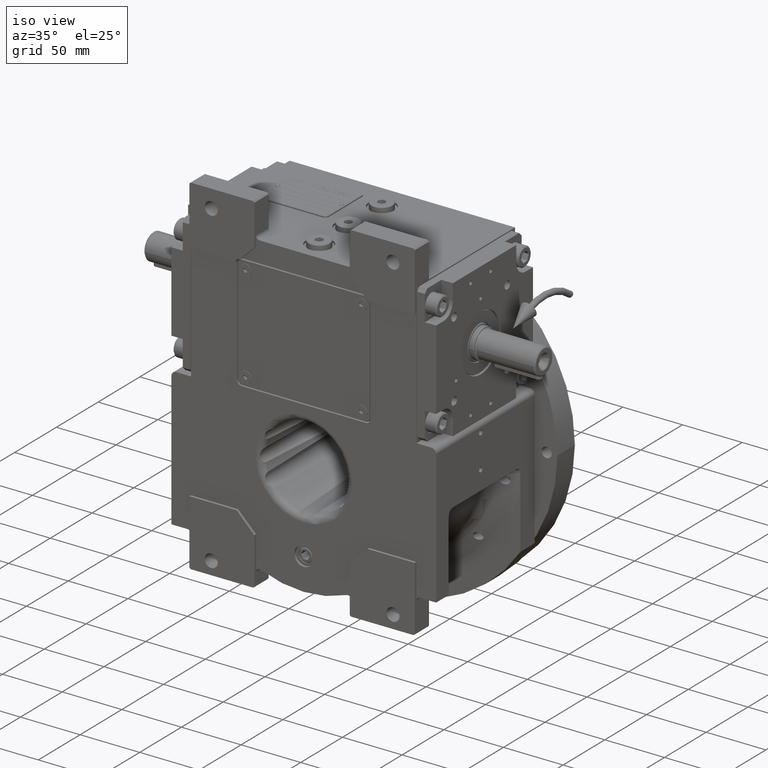
[diagram: clean part render]
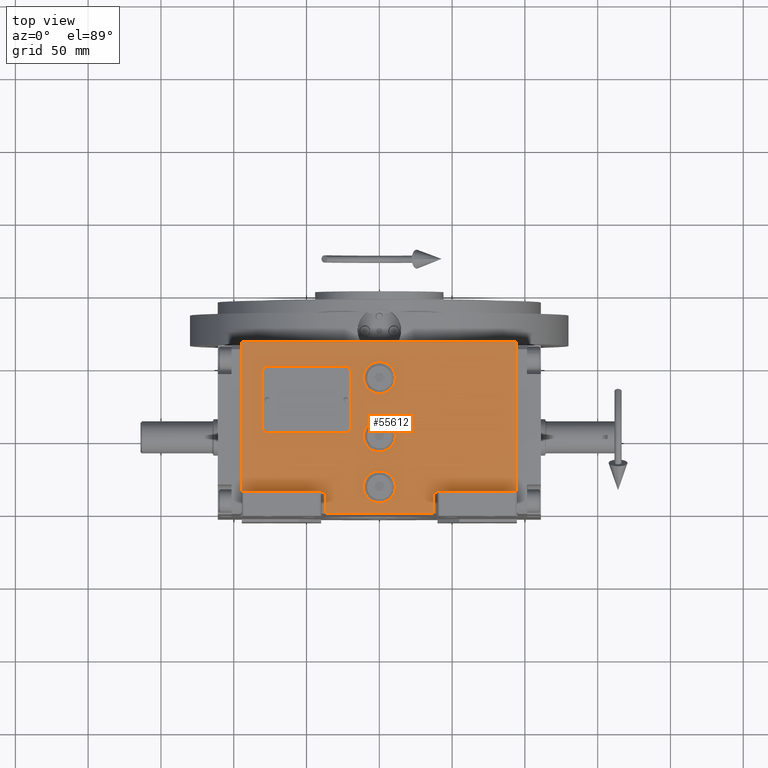
[diagram: tour spotlight — one face highlighted and labeled with its STEP entity id]
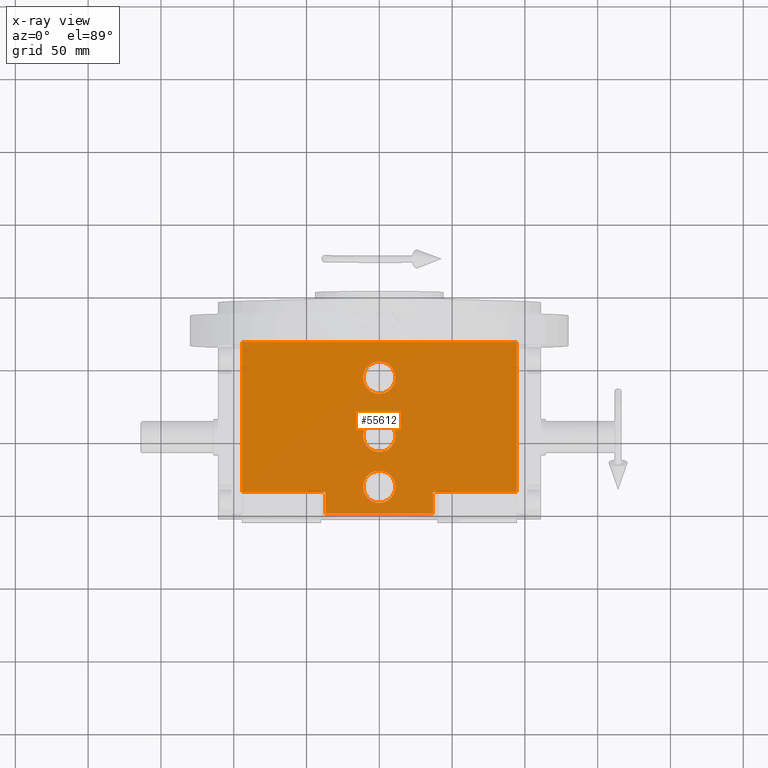
[diagram: x-ray of the same camera — body ghosted, this tour face saturated]
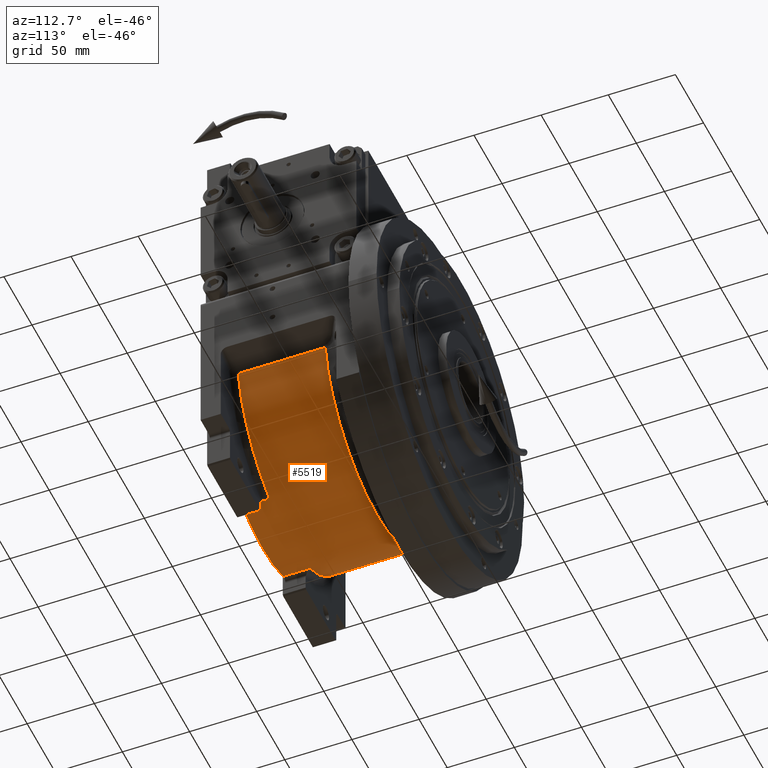
[diagram: tour spotlight — one face highlighted and labeled with its STEP entity id]
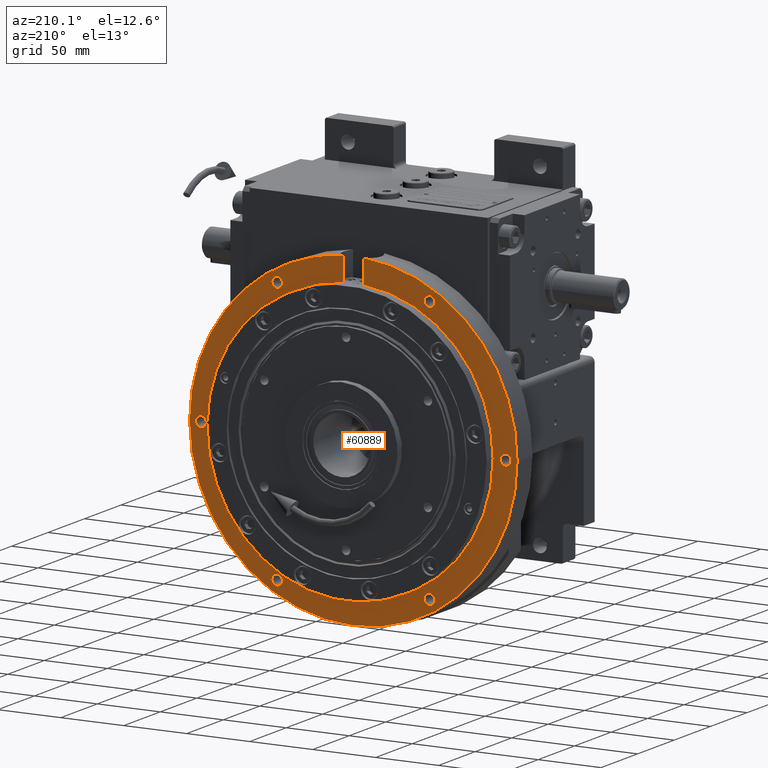
[diagram: tour spotlight — one face highlighted and labeled with its STEP entity id]
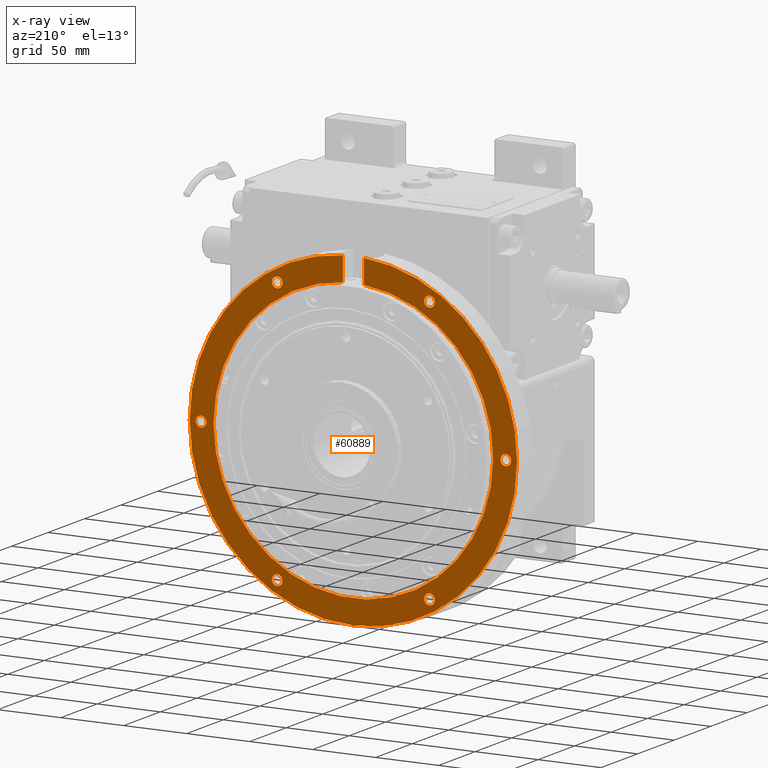
[diagram: x-ray of the same camera — body ghosted, this tour face saturated]
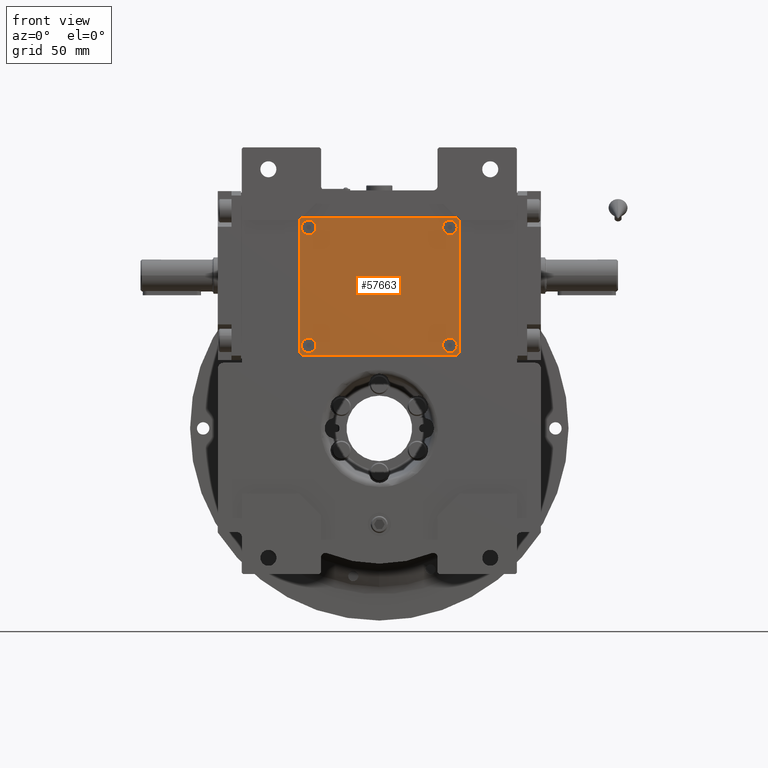
[diagram: tour spotlight — one face highlighted and labeled with its STEP entity id]
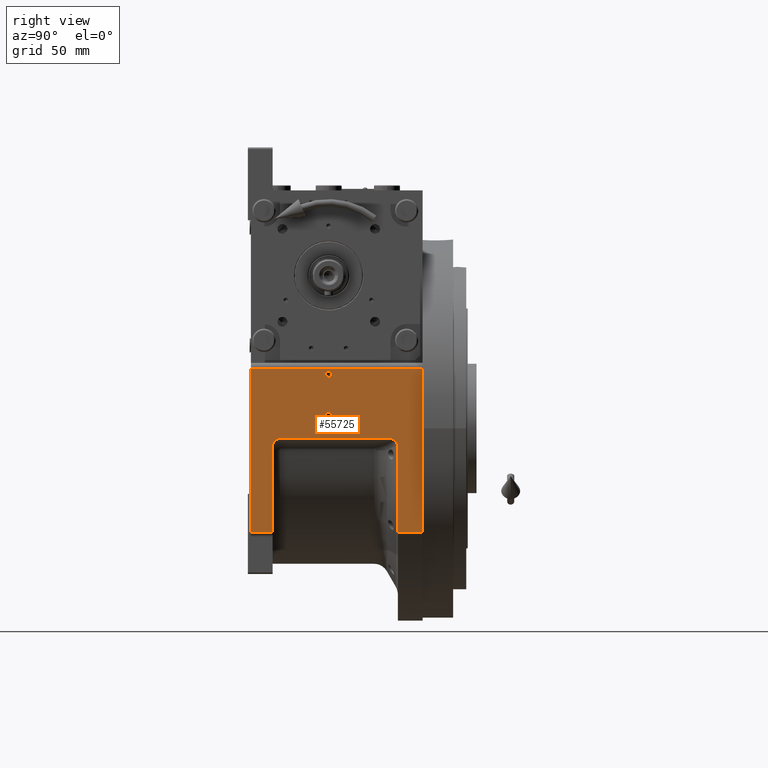
[diagram: tour spotlight — one face highlighted and labeled with its STEP entity id]
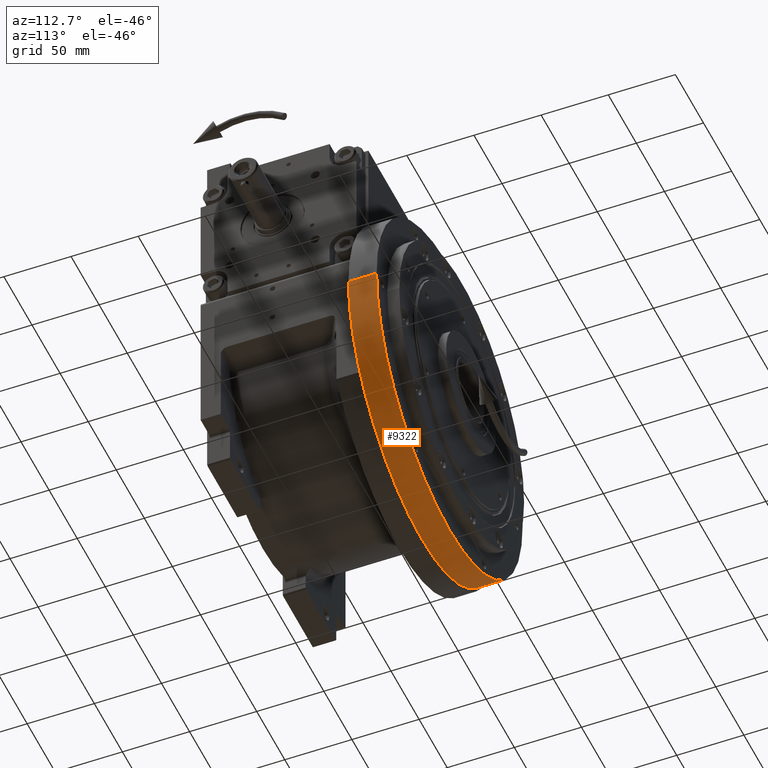
[diagram: tour spotlight — one face highlighted and labeled with its STEP entity id]
A machine part: a face-by-face anatomy tour. The part has 1988 B-rep faces; the first image is the clean iso view, then the 6 largest visible faces are spotlighted one at a time (largest first), each with its STEP entity span.

Face 1 — top view, entity #55612. An x-ray twin of the same camera follows (body ghosted, this face saturated) — the face is partly hidden behind the body. In plain terms, the highlighted planar face has unit normal (0, 0, 1).
Definition (entity closure, byte-faithful):
#133 = ORIENTED_EDGE ( 'NONE', *, *, #55574, .F. ) ;
#647 = DIRECTION ( 'NONE',  ( 0.000000000000000000, 0.000000000000000000, 1.000000000000000000 ) ) ;
#672 = CARTESIAN_POINT ( 'NONE',  ( 11.00000000000000000, -35.00000000000000000, 163.5000000000000000 ) ) ;
#814 = DIRECTION ( 'NONE',  ( 1.000000000000000000, 0.000000000000000000, 0.000000000000000000 ) ) ;
#985 = LINE ( 'NONE', #37556, #62464 ) ;
#1062 = VERTEX_POINT ( 'NONE', #19602 ) ;
#1250 = EDGE_CURVE ( 'NONE', #51047, #18070, #64350, .T. ) ;
#3237 = CIRCLE ( 'NONE', #14211, 11.00000000000000000 ) ;
#4211 = DIRECTION ( 'NONE',  ( 1.000000000000000000, 0.000000000000000000, 0.000000000000000000 ) ) ;
#4278 = VERTEX_POINT ( 'NONE', #30764 ) ;
#5858 = EDGE_CURVE ( 'NONE', #9604, #62191, #17671, .T. ) ;
#5891 = CARTESIAN_POINT ( 'NONE',  ( -94.50000000000000000, -38.50000000000000000, 163.5000000000000000 ) ) ;
#5900 = AXIS2_PLACEMENT_3D ( 'NONE', #14884, #45935, #4211 ) ;
#5954 = CIRCLE ( 'NONE', #5900, 11.00000000000000000 ) ;
#6020 = CARTESIAN_POINT ( 'NONE',  ( 11.00000000000000000, -1.179289943096200059E-15, 163.5000000000000000 ) ) ;
#7438 = VERTEX_POINT ( 'NONE', #32761 ) ;
#8349 = LINE ( 'NONE', #12823, #35295 ) ;
#8575 = DIRECTION ( 'NONE',  ( -1.000000000000000000, 0.000000000000000000, 0.000000000000000000 ) ) ;
#8907 = EDGE_CURVE ( 'NONE', #9604, #31628, #24972, .T. ) ;
#9244 = DIRECTION ( 'NONE',  ( 0.000000000000000000, 0.000000000000000000, 1.000000000000000000 ) ) ;
#9604 = VERTEX_POINT ( 'NONE', #43469 ) ;
#9880 = VECTOR ( 'NONE', #47379, 1000.000000000000000 ) ;
#10107 = EDGE_LOOP ( 'NONE', ( #57200, #25798, #44905, #28329, #51559, #30649, #21640, #12393 ) ) ;
#10458 = ORIENTED_EDGE ( 'NONE', *, *, #48540, .F. ) ;
#10792 = CARTESIAN_POINT ( 'NONE',  ( 94.50000000000000000, -38.50000000000000000, 163.5000000000000000 ) ) ;
#10869 = CIRCLE ( 'NONE', #58181, 11.00000000000000000 ) ;
#11317 = AXIS2_PLACEMENT_3D ( 'NONE', #40150, #18809, #18475 ) ;
#11837 = VECTOR ( 'NONE', #37636, 1000.000000000000000 ) ;
#12393 = ORIENTED_EDGE ( 'NONE', *, *, #56276, .F. ) ;
#12823 = CARTESIAN_POINT ( 'NONE',  ( -94.50000000000000000, 64.50000000000000000, 163.5000000000000000 ) ) ;
#14211 = AXIS2_PLACEMENT_3D ( 'NONE', #47886, #647, #17228 ) ;
#14884 = CARTESIAN_POINT ( 'NONE',  ( 0.000000000000000000, 0.000000000000000000, 163.5000000000000000 ) ) ;
#17228 = DIRECTION ( 'NONE',  ( -1.000000000000000000, 0.000000000000000000, 0.000000000000000000 ) ) ;
#17671 = LINE ( 'NONE', #32471, #55472 ) ;
#17831 = DIRECTION ( 'NONE',  ( 0.000000000000000000, 1.000000000000000000, 0.000000000000000000 ) ) ;
#18070 = VERTEX_POINT ( 'NONE', #20063 ) ;
#18475 = DIRECTION ( 'NONE',  ( 1.000000000000000000, 0.000000000000000000, 0.000000000000000000 ) ) ;
#18608 = DIRECTION ( 'NONE',  ( 1.000000000000000000, 0.000000000000000000, 0.000000000000000000 ) ) ;
#18809 = DIRECTION ( 'NONE',  ( 0.000000000000000000, 0.000000000000000000, 1.000000000000000000 ) ) ;
#18823 = ORIENTED_EDGE ( 'NONE', *, *, #63242, .F. ) ;
#18946 = FACE_BOUND ( 'NONE', #35493, .T. ) ;
#19272 = FACE_BOUND ( 'NONE', #51146, .T. ) ;
#19440 = CARTESIAN_POINT ( 'NONE',  ( -36.99999999999929656, -38.50000000000000000, 163.5000000000000000 ) ) ;
#19572 = VECTOR ( 'NONE', #19826, 1000.000000000000000 ) ;
#19602 = CARTESIAN_POINT ( 'NONE',  ( -11.00000000000000000, 0.000000000000000000, 163.5000000000000000 ) ) ;
#19826 = DIRECTION ( 'NONE',  ( 0.000000000000000000, -1.000000000000000000, 0.000000000000000000 ) ) ;
#20063 = CARTESIAN_POINT ( 'NONE',  ( -94.50000000000000000, 64.50000000000000000, 163.5000000000000000 ) ) ;
#20185 = LINE ( 'NONE', #36381, #9880 ) ;
#21494 = DIRECTION ( 'NONE',  ( -1.000000000000000000, 0.000000000000000000, 0.000000000000000000 ) ) ;
#21640 = ORIENTED_EDGE ( 'NONE', *, *, #36905, .T. ) ;
#21740 = EDGE_CURVE ( 'NONE', #50094, #31628, #63921, .T. ) ;
#22657 = CIRCLE ( 'NONE', #65603, 11.00000000000000000 ) ;
#23444 = ORIENTED_EDGE ( 'NONE', *, *, #44716, .F. ) ;
#24433 = CARTESIAN_POINT ( 'NONE',  ( 0.000000000000000000, 40.00000000000000000, 163.5000000000000000 ) ) ;
#24760 = DIRECTION ( 'NONE',  ( 0.000000000000000000, 0.000000000000000000, 1.000000000000000000 ) ) ;
#24972 = LINE ( 'NONE', #51831, #19572 ) ;
#25656 = CARTESIAN_POINT ( 'NONE',  ( 36.99999999999934630, -53.50000000000000000, 163.5000000000000000 ) ) ;
#25798 = ORIENTED_EDGE ( 'NONE', *, *, #8907, .F. ) ;
#26680 = CARTESIAN_POINT ( 'NONE',  ( -36.99999999999929656, -53.50000000000000000, 163.5000000000000000 ) ) ;
#26964 = VERTEX_POINT ( 'NONE', #55891 ) ;
#27011 = EDGE_CURVE ( 'NONE', #18070, #40426, #8349, .T. ) ;
#27552 = CARTESIAN_POINT ( 'NONE',  ( 0.000000000000000000, 40.00000000000000000, 163.5000000000000000 ) ) ;
#28329 = ORIENTED_EDGE ( 'NONE', *, *, #53985, .T. ) ;
#29268 = FACE_BOUND ( 'NONE', #56174, .T. ) ;
#29469 = AXIS2_PLACEMENT_3D ( 'NONE', #27552, #33747, #43403 ) ;
#30649 = ORIENTED_EDGE ( 'NONE', *, *, #1250, .F. ) ;
#30764 = CARTESIAN_POINT ( 'NONE',  ( -11.00000000000000000, 40.00000000000000000, 163.5000000000000000 ) ) ;
#30799 = VECTOR ( 'NONE', #17831, 1000.000000000000000 ) ;
#31628 = VERTEX_POINT ( 'NONE', #25656 ) ;
#32197 = CARTESIAN_POINT ( 'NONE',  ( 0.000000000000000000, 0.000000000000000000, 163.5000000000000000 ) ) ;
#32471 = CARTESIAN_POINT ( 'NONE',  ( 36.99999999999934630, -38.50000000000000000, 163.5000000000000000 ) ) ;
#32761 = CARTESIAN_POINT ( 'NONE',  ( 11.00000000000000000, 40.00000000000000000, 163.5000000000000000 ) ) ;
#33414 = CARTESIAN_POINT ( 'NONE',  ( 94.50000000000000000, 64.50000000000000000, 163.5000000000000000 ) ) ;
#33747 = DIRECTION ( 'NONE',  ( 0.000000000000000000, 0.000000000000000000, 1.000000000000000000 ) ) ;
#35295 = VECTOR ( 'NONE', #49008, 1000.000000000000000 ) ;
#35493 = EDGE_LOOP ( 'NONE', ( #47393, #133 ) ) ;
#35782 = PLANE ( 'NONE',  #50541 ) ;
#36381 = CARTESIAN_POINT ( 'NONE',  ( -36.99999999999929656, -53.50000000000000000, 163.5000000000000000 ) ) ;
#36905 = EDGE_CURVE ( 'NONE', #51047, #57949, #47605, .T. ) ;
#37556 = CARTESIAN_POINT ( 'NONE',  ( 94.50000000000000000, -38.50000000000000000, 163.5000000000000000 ) ) ;
#37636 = DIRECTION ( 'NONE',  ( 1.000000000000000000, 0.000000000000000000, 0.000000000000000000 ) ) ;
#38955 = EDGE_CURVE ( 'NONE', #26964, #43190, #3237, .T. ) ;
#40150 = CARTESIAN_POINT ( 'NONE',  ( 0.000000000000000000, -35.00000000000000000, 163.5000000000000000 ) ) ;
#40426 = VERTEX_POINT ( 'NONE', #33414 ) ;
#43190 = VERTEX_POINT ( 'NONE', #672 ) ;
#43403 = DIRECTION ( 'NONE',  ( 1.000000000000000000, 0.000000000000000000, 0.000000000000000000 ) ) ;
#43469 = CARTESIAN_POINT ( 'NONE',  ( 36.99999999999934630, -38.50000000000000000, 163.5000000000000000 ) ) ;
#43849 = DIRECTION ( 'NONE',  ( 1.000000000000000000, 0.000000000000000000, 0.000000000000000000 ) ) ;
#44716 = EDGE_CURVE ( 'NONE', #43190, #26964, #63097, .T. ) ;
#44905 = ORIENTED_EDGE ( 'NONE', *, *, #5858, .T. ) ;
#45935 = DIRECTION ( 'NONE',  ( 0.000000000000000000, 0.000000000000000000, 1.000000000000000000 ) ) ;
#47379 = DIRECTION ( 'NONE',  ( 0.000000000000000000, 1.000000000000000000, 0.000000000000000000 ) ) ;
#47393 = ORIENTED_EDGE ( 'NONE', *, *, #53906, .F. ) ;
#47605 = LINE ( 'NONE', #5891, #11837 ) ;
#47886 = CARTESIAN_POINT ( 'NONE',  ( 0.000000000000000000, -35.00000000000000000, 163.5000000000000000 ) ) ;
#48476 = CARTESIAN_POINT ( 'NONE',  ( -94.50000000000000000, -38.50000000000000000, 163.5000000000000000 ) ) ;
#48540 = EDGE_CURVE ( 'NONE', #60850, #1062, #5954, .T. ) ;
#48887 = DIRECTION ( 'NONE',  ( 0.000000000000000000, 1.000000000000000000, 0.000000000000000000 ) ) ;
#49008 = DIRECTION ( 'NONE',  ( 1.000000000000000000, 0.000000000000000000, 0.000000000000000000 ) ) ;
#50094 = VERTEX_POINT ( 'NONE', #57941 ) ;
#50541 = AXIS2_PLACEMENT_3D ( 'NONE', #56439, #24760, #18608 ) ;
#51047 = VERTEX_POINT ( 'NONE', #57771 ) ;
#51146 = EDGE_LOOP ( 'NONE', ( #10458, #18823 ) ) ;
#51559 = ORIENTED_EDGE ( 'NONE', *, *, #27011, .F. ) ;
#51831 = CARTESIAN_POINT ( 'NONE',  ( 36.99999999999934630, -38.50000000000000000, 163.5000000000000000 ) ) ;
#53795 = VECTOR ( 'NONE', #814, 1000.000000000000000 ) ;
#53906 = EDGE_CURVE ( 'NONE', #7438, #4278, #66890, .T. ) ;
#53985 = EDGE_CURVE ( 'NONE', #62191, #40426, #985, .T. ) ;
#55472 = VECTOR ( 'NONE', #43849, 1000.000000000000000 ) ;
#55574 = EDGE_CURVE ( 'NONE', #4278, #7438, #10869, .T. ) ;
#55612 = ADVANCED_FACE ( 'NONE', ( #19272, #29268, #18946, #55778 ), #35782, .T. ) ;
#55778 = FACE_OUTER_BOUND ( 'NONE', #10107, .T. ) ;
#55891 = CARTESIAN_POINT ( 'NONE',  ( -11.00000000000000000, -35.00000000000000000, 163.5000000000000000 ) ) ;
#56174 = EDGE_LOOP ( 'NONE', ( #23444, #67114 ) ) ;
#56276 = EDGE_CURVE ( 'NONE', #50094, #57949, #20185, .T. ) ;
#56439 = CARTESIAN_POINT ( 'NONE',  ( -94.50000000000000000, -53.50000000000000000, 163.5000000000000000 ) ) ;
#57200 = ORIENTED_EDGE ( 'NONE', *, *, #21740, .T. ) ;
#57771 = CARTESIAN_POINT ( 'NONE',  ( -94.50000000000000000, -38.50000000000000000, 163.5000000000000000 ) ) ;
#57941 = CARTESIAN_POINT ( 'NONE',  ( -36.99999999999929656, -53.50000000000000000, 163.5000000000000000 ) ) ;
#57949 = VERTEX_POINT ( 'NONE', #19440 ) ;
#58181 = AXIS2_PLACEMENT_3D ( 'NONE', #24433, #9244, #8575 ) ;
#58705 = DIRECTION ( 'NONE',  ( 0.000000000000000000, 0.000000000000000000, 1.000000000000000000 ) ) ;
#60850 = VERTEX_POINT ( 'NONE', #6020 ) ;
#62191 = VERTEX_POINT ( 'NONE', #10792 ) ;
#62464 = VECTOR ( 'NONE', #48887, 1000.000000000000000 ) ;
#63097 = CIRCLE ( 'NONE', #11317, 11.00000000000000000 ) ;
#63242 = EDGE_CURVE ( 'NONE', #1062, #60850, #22657, .T. ) ;
#63921 = LINE ( 'NONE', #26680, #53795 ) ;
#64350 = LINE ( 'NONE', #48476, #30799 ) ;
#65603 = AXIS2_PLACEMENT_3D ( 'NONE', #32197, #58705, #21494 ) ;
#66890 = CIRCLE ( 'NONE', #29469, 11.00000000000000000 ) ;
#67114 = ORIENTED_EDGE ( 'NONE', *, *, #38955, .F. ) ;

Face 2 — auxiliary view, entity #5519. In plain terms, the highlighted cylindrical surface (partial cylindrical patch) has radius 93 mm, axis along (0, 1, 0).
Definition (entity closure, byte-faithful):
#1933 = LINE ( 'NONE', #27108, #15153 ) ;
#2525 = DIRECTION ( 'NONE',  ( 0.000000000000000000, 0.000000000000000000, 1.000000000000000000 ) ) ;
#2834 = VECTOR ( 'NONE', #20881, 1000.000000000000000 ) ;
#4621 = EDGE_CURVE ( 'NONE', #67668, #36885, #36671, .T. ) ;
#5131 = DIRECTION ( 'NONE',  ( 0.000000000000000000, 1.000000000000000000, 0.000000000000000000 ) ) ;
#5519 = ADVANCED_FACE ( 'NONE', ( #30108 ), #39438, .T. ) ;
#5795 = VERTEX_POINT ( 'NONE', #48309 ) ;
#6424 = DIRECTION ( 'NONE',  ( 1.776356839400250070E-15, 1.000000000000000000, -7.105427357601000281E-16 ) ) ;
#7948 = ORIENTED_EDGE ( 'NONE', *, *, #54418, .T. ) ;
#8150 = AXIS2_PLACEMENT_3D ( 'NONE', #23570, #45946, #2525 ) ;
#9185 = AXIS2_PLACEMENT_3D ( 'NONE', #31027, #5131, #26165 ) ;
#9368 = EDGE_CURVE ( 'NONE', #5795, #30048, #17456, .T. ) ;
#13293 = VERTEX_POINT ( 'NONE', #54490 ) ;
#15153 = VECTOR ( 'NONE', #6424, 1000.000000000000000 ) ;
#15602 = CARTESIAN_POINT ( 'NONE',  ( 35.84375000000000000, -53.50000000000000000, -85.81506619433150718 ) ) ;
#15884 = CARTESIAN_POINT ( 'NONE',  ( 1.421085471520200056E-14, 31.21878281274215183, 0.000000000000000000 ) ) ;
#16853 = ORIENTED_EDGE ( 'NONE', *, *, #29314, .F. ) ;
#17003 = EDGE_CURVE ( 'NONE', #67688, #44942, #60957, .T. ) ;
#17299 = CARTESIAN_POINT ( 'NONE',  ( 35.84375000000000000, -33.50000000000000000, -85.81506619433150718 ) ) ;
#17456 = CIRCLE ( 'NONE', #42774, 93.00000000000001421 ) ;
#17975 = DIRECTION ( 'NONE',  ( 0.9865608847851539132, -1.678764654171103455E-15, -0.1633940654122239822 ) ) ;
#18260 = ORIENTED_EDGE ( 'NONE', *, *, #35450, .T. ) ;
#19396 = ORIENTED_EDGE ( 'NONE', *, *, #23947, .T. ) ;
#19401 = VECTOR ( 'NONE', #45252, 1000.000000000000000 ) ;
#20881 = DIRECTION ( 'NONE',  ( 0.000000000000000000, 1.000000000000000000, 0.000000000000000000 ) ) ;
#21761 = CARTESIAN_POINT ( 'NONE',  ( -5.684341886080798963E-14, -33.50000000000000000, -4.973799150320699408E-14 ) ) ;
#21922 = EDGE_LOOP ( 'NONE', ( #30044, #7948, #36104, #18260, #16853, #21971, #59489, #19396 ) ) ;
#21971 = ORIENTED_EDGE ( 'NONE', *, *, #29116, .T. ) ;
#23570 = CARTESIAN_POINT ( 'NONE',  ( -4.517455316885850268E-28, -53.50000000000000000, 0.000000000000000000 ) ) ;
#23947 = EDGE_CURVE ( 'NONE', #36885, #44942, #61734, .T. ) ;
#24229 = LINE ( 'NONE', #35590, #19401 ) ;
#26165 = DIRECTION ( 'NONE',  ( 0.9865608847878558629, 0.000000000000000000, -0.1633940653959109757 ) ) ;
#27108 = CARTESIAN_POINT ( 'NONE',  ( -35.84375000000000000, -53.50000000000000000, -85.81506619433150718 ) ) ;
#29008 = DIRECTION ( 'NONE',  ( 0.000000000000000000, -1.000000000000000000, 0.000000000000000000 ) ) ;
#29116 = EDGE_CURVE ( 'NONE', #13293, #67668, #24229, .T. ) ;
#29314 = EDGE_CURVE ( 'NONE', #13293, #44372, #36983, .T. ) ;
#30044 = ORIENTED_EDGE ( 'NONE', *, *, #17003, .F. ) ;
#30048 = VERTEX_POINT ( 'NONE', #39162 ) ;
#30108 = FACE_OUTER_BOUND ( 'NONE', #21922, .T. ) ;
#31027 = CARTESIAN_POINT ( 'NONE',  ( 1.421085471520200056E-14, -33.50000000000000000, 1.421085471520200056E-14 ) ) ;
#33193 = CARTESIAN_POINT ( 'NONE',  ( -35.84375000000000000, -53.50000000000000000, -85.81506619433150718 ) ) ;
#33714 = AXIS2_PLACEMENT_3D ( 'NONE', #15884, #36923, #17975 ) ;
#35450 = EDGE_CURVE ( 'NONE', #30048, #44372, #40573, .T. ) ;
#35590 = CARTESIAN_POINT ( 'NONE',  ( 91.75016228501930016, 31.21878281274199907, -15.19564808333685058 ) ) ;
#36104 = ORIENTED_EDGE ( 'NONE', *, *, #9368, .T. ) ;
#36671 = CIRCLE ( 'NONE', #9185, 93.00000000000001421 ) ;
#36885 = VERTEX_POINT ( 'NONE', #17299 ) ;
#36923 = DIRECTION ( 'NONE',  ( 5.743225055535190204E-15, 1.000000000000000000, 2.439003765979129920E-14 ) ) ;
#36983 = CIRCLE ( 'NONE', #33714, 93.00000000000001421 ) ;
#37618 = DIRECTION ( 'NONE',  ( 0.000000000000000000, 1.000000000000000000, 0.000000000000000000 ) ) ;
#38931 = AXIS2_PLACEMENT_3D ( 'NONE', #54127, #56476, #40660 ) ;
#39162 = CARTESIAN_POINT ( 'NONE',  ( -91.75016228508779648, -33.50000000000000000, -15.19564808292360070 ) ) ;
#39438 = CYLINDRICAL_SURFACE ( 'NONE', #8150, 93.00000000000000000 ) ;
#39893 = CARTESIAN_POINT ( 'NONE',  ( -91.75030103113060420, 31.21878279875124917, -15.19503959111690072 ) ) ;
#40573 = LINE ( 'NONE', #52228, #2834 ) ;
#40660 = DIRECTION ( 'NONE',  ( -0.3854166666666672403, 0.000000000000000000, -0.9227426472508764022 ) ) ;
#42774 = AXIS2_PLACEMENT_3D ( 'NONE', #21761, #37618, #52086 ) ;
#44372 = VERTEX_POINT ( 'NONE', #39893 ) ;
#44942 = VERTEX_POINT ( 'NONE', #15602 ) ;
#45198 = CARTESIAN_POINT ( 'NONE',  ( 35.84375000000000000, -33.50000000000000000, -85.81506619433150718 ) ) ;
#45252 = DIRECTION ( 'NONE',  ( 0.000000000000000000, -1.000000000000000000, 0.000000000000000000 ) ) ;
#45946 = DIRECTION ( 'NONE',  ( 0.000000000000000000, 1.000000000000000000, 0.000000000000000000 ) ) ;
#48309 = CARTESIAN_POINT ( 'NONE',  ( -35.84375000000000000, -33.50000000000000000, -85.81506619433150718 ) ) ;
#52086 = DIRECTION ( 'NONE',  ( -0.3854166666666659080, 0.000000000000000000, -0.9227426472508768462 ) ) ;
#52228 = CARTESIAN_POINT ( 'NONE',  ( -91.75016228501930016, -33.50000000000000000, -15.19564808333695183 ) ) ;
#54127 = CARTESIAN_POINT ( 'NONE',  ( 1.421085471520200056E-14, -53.50000000000000000, -4.263256414560599853E-14 ) ) ;
#54195 = CARTESIAN_POINT ( 'NONE',  ( 91.75016228514499517, -33.50000000000000000, -15.19564808257825028 ) ) ;
#54418 = EDGE_CURVE ( 'NONE', #67688, #5795, #1933, .T. ) ;
#54490 = CARTESIAN_POINT ( 'NONE',  ( 91.75016228501930016, 31.21878281274259948, -15.19564808333685058 ) ) ;
#56476 = DIRECTION ( 'NONE',  ( 0.000000000000000000, -1.000000000000000000, 0.000000000000000000 ) ) ;
#59489 = ORIENTED_EDGE ( 'NONE', *, *, #4621, .T. ) ;
#60957 = CIRCLE ( 'NONE', #38931, 92.99999999999995737 ) ;
#61734 = LINE ( 'NONE', #45198, #62419 ) ;
#62419 = VECTOR ( 'NONE', #29008, 1000.000000000000000 ) ;
#67668 = VERTEX_POINT ( 'NONE', #54195 ) ;
#67688 = VERTEX_POINT ( 'NONE', #33193 ) ;

Face 3 — auxiliary view, entity #60889. An x-ray twin of the same camera follows (body ghosted, this face saturated) — the face is partly hidden behind the body. In plain terms, the highlighted planar face has unit normal (0, -1, 0).
Definition (entity closure, byte-faithful):
#35 = FACE_BOUND ( 'NONE', #23746, .T. ) ;
#1417 = CARTESIAN_POINT ( 'NONE',  ( 116.7500000000000000, -2.469622813541794926E-15, 21.00000000000000355 ) ) ;
#1521 = CARTESIAN_POINT ( 'NONE',  ( 121.0000000000000000, 0.000000000000000000, 21.00000000000000355 ) ) ;
#1993 = EDGE_CURVE ( 'NONE', #35475, #45851, #24255, .T. ) ;
#2182 = CARTESIAN_POINT ( 'NONE',  ( 1.421085471520200056E-14, -7.105427357600998703E-15, 21.00000000000000355 ) ) ;
#2263 = ORIENTED_EDGE ( 'NONE', *, *, #4176, .F. ) ;
#2727 = ORIENTED_EDGE ( 'NONE', *, *, #42769, .F. ) ;
#3339 = AXIS2_PLACEMENT_3D ( 'NONE', #21100, #42117, #58985 ) ;
#3353 = ORIENTED_EDGE ( 'NONE', *, *, #27975, .T. ) ;
#3392 = DIRECTION ( 'NONE',  ( 0.000000000000000000, 0.000000000000000000, 1.000000000000000000 ) ) ;
#4176 = EDGE_CURVE ( 'NONE', #64375, #68008, #31126, .T. ) ;
#4221 = DIRECTION ( 'NONE',  ( 0.000000000000000000, 0.000000000000000000, -1.000000000000000000 ) ) ;
#4248 = CARTESIAN_POINT ( 'NONE',  ( 8.291561975888500413, -129.7353074532911990, 21.00000000000000355 ) ) ;
#4662 = CARTESIAN_POINT ( 'NONE',  ( -121.0000000000000000, 2.220446049250314659E-14, 21.00000000000000355 ) ) ;
#4685 = DIRECTION ( 'NONE',  ( 0.06378124596837327076, -0.9979639034868555969, 0.000000000000000000 ) ) ;
#5155 = VERTEX_POINT ( 'NONE', #19601 ) ;
#5165 = VERTEX_POINT ( 'NONE', #37390 ) ;
#5320 = CARTESIAN_POINT ( 'NONE',  ( -8.291561975888519953, -129.7353074532911990, 21.00000000000000355 ) ) ;
#5755 = CIRCLE ( 'NONE', #9134, 4.250000000000003553 ) ;
#5944 = AXIS2_PLACEMENT_3D ( 'NONE', #43542, #11816, #32866 ) ;
#7813 = EDGE_CURVE ( 'NONE', #16777, #5165, #17004, .T. ) ;
#8191 = EDGE_LOOP ( 'NONE', ( #28111, #36645 ) ) ;
#8238 = DIRECTION ( 'NONE',  ( 0.000000000000000000, 0.000000000000000000, 1.000000000000000000 ) ) ;
#8291 = EDGE_CURVE ( 'NONE', #48885, #66150, #25817, .T. ) ;
#8321 = DIRECTION ( 'NONE',  ( 1.000000000000000000, 2.089831575764998299E-16, 0.000000000000000000 ) ) ;
#8454 = VERTEX_POINT ( 'NONE', #48453 ) ;
#8529 = EDGE_CURVE ( 'NONE', #48539, #64654, #53626, .T. ) ;
#8830 = AXIS2_PLACEMENT_3D ( 'NONE', #57934, #21779, #52104 ) ;
#9134 = AXIS2_PLACEMENT_3D ( 'NONE', #4662, #25694, #46708 ) ;
#10089 = DIRECTION ( 'NONE',  ( -1.000000000000000000, 0.000000000000000000, 0.000000000000000000 ) ) ;
#10770 = DIRECTION ( 'NONE',  ( 0.000000000000000000, 0.000000000000000000, 1.000000000000000000 ) ) ;
#10865 = CARTESIAN_POINT ( 'NONE',  ( -56.25000000000000000, 104.7890738579170034, 21.00000000000000355 ) ) ;
#10878 = DIRECTION ( 'NONE',  ( -1.000000000000000000, -5.224578939412495427E-15, 0.000000000000000000 ) ) ;
#11026 = CARTESIAN_POINT ( 'NONE',  ( 111.0000000000000000, -9.062386313690408852E-15, 21.00000000000000355 ) ) ;
#11555 = DIRECTION ( 'NONE',  ( 0.000000000000000000, 0.000000000000000000, 1.000000000000000000 ) ) ;
#11617 = CARTESIAN_POINT ( 'NONE',  ( 60.50000000000000000, -104.7890738579170034, 21.00000000000000355 ) ) ;
#11816 = DIRECTION ( 'NONE',  ( 0.000000000000000000, 0.000000000000000000, 1.000000000000000000 ) ) ;
#12426 = AXIS2_PLACEMENT_3D ( 'NONE', #11617, #22338, #48840 ) ;
#12760 = AXIS2_PLACEMENT_3D ( 'NONE', #24831, #35538, #20018 ) ;
#13168 = EDGE_CURVE ( 'NONE', #63005, #58009, #64963, .T. ) ;
#14080 = DIRECTION ( 'NONE',  ( -1.000000000000000000, -1.335867563952105914E-16, 0.000000000000000000 ) ) ;
#14551 = EDGE_CURVE ( 'NONE', #5155, #21188, #17799, .T. ) ;
#15232 = FACE_BOUND ( 'NONE', #51841, .T. ) ;
#15299 = ORIENTED_EDGE ( 'NONE', *, *, #39613, .F. ) ;
#16777 = VERTEX_POINT ( 'NONE', #63791 ) ;
#17004 = CIRCLE ( 'NONE', #5944, 4.250000000000003553 ) ;
#17274 = ORIENTED_EDGE ( 'NONE', *, *, #57802, .F. ) ;
#17799 = CIRCLE ( 'NONE', #36457, 111.0000000000000000 ) ;
#18576 = AXIS2_PLACEMENT_3D ( 'NONE', #29603, #3392, #60620 ) ;
#19601 = CARTESIAN_POINT ( 'NONE',  ( -111.0000000000000000, 1.359357947053561880E-14, 21.00000000000000355 ) ) ;
#20018 = DIRECTION ( 'NONE',  ( 0.06378124596837327076, -0.9979639034868555969, 0.000000000000000000 ) ) ;
#20188 = DIRECTION ( 'NONE',  ( -1.000000000000000000, 0.000000000000000000, 0.000000000000000000 ) ) ;
#20486 = CIRCLE ( 'NONE', #66794, 111.0000000000000000 ) ;
#21088 = FACE_BOUND ( 'NONE', #49768, .T. ) ;
#21100 = CARTESIAN_POINT ( 'NONE',  ( -60.50000000000000000, 104.7890738579170034, 21.00000000000000355 ) ) ;
#21188 = VERTEX_POINT ( 'NONE', #38686 ) ;
#21269 = DIRECTION ( 'NONE',  ( 0.000000000000000000, 0.000000000000000000, 1.000000000000000000 ) ) ;
#21428 = FACE_OUTER_BOUND ( 'NONE', #23539, .T. ) ;
#21779 = DIRECTION ( 'NONE',  ( 0.000000000000000000, 0.000000000000000000, 1.000000000000000000 ) ) ;
#22173 = AXIS2_PLACEMENT_3D ( 'NONE', #1521, #60446, #34279 ) ;
#22338 = DIRECTION ( 'NONE',  ( 0.000000000000000000, 0.000000000000000000, 1.000000000000000000 ) ) ;
#22409 = DIRECTION ( 'NONE',  ( 1.000000000000000000, 0.000000000000000000, 0.000000000000000000 ) ) ;
#22696 = EDGE_LOOP ( 'NONE', ( #29236, #17274 ) ) ;
#22916 = DIRECTION ( 'NONE',  ( 0.06378124596837327076, -0.9979639034868555969, 0.000000000000000000 ) ) ;
#23254 = CARTESIAN_POINT ( 'NONE',  ( -3.375077994860475252E-14, -8.312794896880859596E-15, 21.00000000000000355 ) ) ;
#23342 = ORIENTED_EDGE ( 'NONE', *, *, #51060, .F. ) ;
#23494 = AXIS2_PLACEMENT_3D ( 'NONE', #52451, #4221, #57261 ) ;
#23539 = EDGE_LOOP ( 'NONE', ( #59210, #23342, #2263, #36155, #63723, #43314, #32458, #3353 ) ) ;
#23561 = DIRECTION ( 'NONE',  ( 0.07469875653953610140, -0.9972061450730471677, 0.000000000000000000 ) ) ;
#23746 = EDGE_LOOP ( 'NONE', ( #64489, #15299 ) ) ;
#23935 = AXIS2_PLACEMENT_3D ( 'NONE', #58082, #11555, #10878 ) ;
#24255 = CIRCLE ( 'NONE', #3339, 4.250000000000003553 ) ;
#24831 = CARTESIAN_POINT ( 'NONE',  ( -3.375077994860475252E-14, -8.312794896880859596E-15, 21.00000000000000355 ) ) ;
#24908 = CARTESIAN_POINT ( 'NONE',  ( 64.75000000000000000, 104.7890738579170034, 21.00000000000000355 ) ) ;
#25223 = AXIS2_PLACEMENT_3D ( 'NONE', #55523, #40034, #8321 ) ;
#25547 = EDGE_CURVE ( 'NONE', #64736, #68045, #30616, .T. ) ;
#25694 = DIRECTION ( 'NONE',  ( 0.000000000000000000, 0.000000000000000000, 1.000000000000000000 ) ) ;
#25817 = CIRCLE ( 'NONE', #65514, 130.0000000000000568 ) ;
#26071 = CARTESIAN_POINT ( 'NONE',  ( 130.0000000000000000, 0.000000000000000000, 21.00000000000000355 ) ) ;
#26633 = EDGE_CURVE ( 'NONE', #62614, #64375, #36310, .T. ) ;
#26731 = CARTESIAN_POINT ( 'NONE',  ( -64.75000000000000000, 104.7890738579170034, 21.00000000000000355 ) ) ;
#27441 = CIRCLE ( 'NONE', #25223, 4.250000000000003553 ) ;
#27769 = ORIENTED_EDGE ( 'NONE', *, *, #44209, .F. ) ;
#27975 = EDGE_CURVE ( 'NONE', #66150, #21188, #29134, .T. ) ;
#28111 = ORIENTED_EDGE ( 'NONE', *, *, #1993, .F. ) ;
#28921 = AXIS2_PLACEMENT_3D ( 'NONE', #2182, #55247, #23561 ) ;
#29134 = LINE ( 'NONE', #50120, #63988 ) ;
#29214 = ORIENTED_EDGE ( 'NONE', *, *, #25547, .F. ) ;
#29236 = ORIENTED_EDGE ( 'NONE', *, *, #38665, .F. ) ;
#29603 = CARTESIAN_POINT ( 'NONE',  ( -60.50000000000000000, 104.7890738579170034, 21.00000000000000355 ) ) ;
#30591 = CARTESIAN_POINT ( 'NONE',  ( -116.7500000000000000, 6.953233689883671129E-15, 21.00000000000000355 ) ) ;
#30616 = CIRCLE ( 'NONE', #41616, 4.250000000000003553 ) ;
#31126 = CIRCLE ( 'NONE', #28921, 110.9999999999999858 ) ;
#31188 = VERTEX_POINT ( 'NONE', #26071 ) ;
#32458 = ORIENTED_EDGE ( 'NONE', *, *, #8291, .T. ) ;
#32866 = DIRECTION ( 'NONE',  ( -1.000000000000000000, 0.000000000000000000, 0.000000000000000000 ) ) ;
#34279 = DIRECTION ( 'NONE',  ( -1.000000000000000000, 0.000000000000000000, 0.000000000000000000 ) ) ;
#34317 = ORIENTED_EDGE ( 'NONE', *, *, #8529, .F. ) ;
#34667 = CARTESIAN_POINT ( 'NONE',  ( -56.25000000000000000, -104.7890738579170034, 21.00000000000000355 ) ) ;
#35051 = CIRCLE ( 'NONE', #18576, 4.250000000000003553 ) ;
#35300 = CIRCLE ( 'NONE', #58314, 4.250000000000003553 ) ;
#35475 = VERTEX_POINT ( 'NONE', #10865 ) ;
#35538 = DIRECTION ( 'NONE',  ( 0.000000000000000000, 0.000000000000000000, 1.000000000000000000 ) ) ;
#36087 = DIRECTION ( 'NONE',  ( 0.000000000000000000, 0.000000000000000000, 1.000000000000000000 ) ) ;
#36155 = ORIENTED_EDGE ( 'NONE', *, *, #26633, .F. ) ;
#36310 = LINE ( 'NONE', #4248, #60504 ) ;
#36457 = AXIS2_PLACEMENT_3D ( 'NONE', #46441, #8238, #14080 ) ;
#36645 = ORIENTED_EDGE ( 'NONE', *, *, #37626, .F. ) ;
#36783 = DIRECTION ( 'NONE',  ( 1.000000000000000000, -1.280257181549730054E-16, 0.000000000000000000 ) ) ;
#36973 = CARTESIAN_POINT ( 'NONE',  ( 60.50000000000000000, 104.7890738579170034, 21.00000000000000355 ) ) ;
#36998 = VERTEX_POINT ( 'NONE', #1417 ) ;
#37390 = CARTESIAN_POINT ( 'NONE',  ( 64.75000000000000000, -104.7890738579170034, 21.00000000000000355 ) ) ;
#37626 = EDGE_CURVE ( 'NONE', #45851, #35475, #35051, .T. ) ;
#38665 = EDGE_CURVE ( 'NONE', #8454, #36998, #27441, .T. ) ;
#38686 = CARTESIAN_POINT ( 'NONE',  ( -8.291561975888470215, -110.6898821031081894, 21.00000000000000355 ) ) ;
#39613 = EDGE_CURVE ( 'NONE', #58009, #63005, #35300, .T. ) ;
#40034 = DIRECTION ( 'NONE',  ( 0.000000000000000000, 0.000000000000000000, 1.000000000000000000 ) ) ;
#41122 = CARTESIAN_POINT ( 'NONE',  ( -64.75000000000000000, -104.7890738579170034, 21.00000000000000355 ) ) ;
#41616 = AXIS2_PLACEMENT_3D ( 'NONE', #48583, #59609, #22409 ) ;
#42117 = DIRECTION ( 'NONE',  ( 0.000000000000000000, 0.000000000000000000, 1.000000000000000000 ) ) ;
#42120 = CIRCLE ( 'NONE', #12426, 4.250000000000003553 ) ;
#42475 = CIRCLE ( 'NONE', #12760, 130.0000000000000568 ) ;
#42769 = EDGE_CURVE ( 'NONE', #68045, #64736, #58454, .T. ) ;
#43314 = ORIENTED_EDGE ( 'NONE', *, *, #57805, .T. ) ;
#43542 = CARTESIAN_POINT ( 'NONE',  ( 60.50000000000000000, -104.7890738579170034, 21.00000000000000355 ) ) ;
#44209 = EDGE_CURVE ( 'NONE', #5165, #16777, #42120, .T. ) ;
#44554 = EDGE_CURVE ( 'NONE', #64654, #48539, #5755, .T. ) ;
#44745 = CARTESIAN_POINT ( 'NONE',  ( 8.291561975888509295, -110.6898821031081894, 21.00000000000000355 ) ) ;
#45851 = VERTEX_POINT ( 'NONE', #26731 ) ;
#46441 = CARTESIAN_POINT ( 'NONE',  ( 2.842170943040399481E-14, 2.842170943040399481E-14, 21.00000000000000355 ) ) ;
#46708 = DIRECTION ( 'NONE',  ( 1.000000000000000000, -5.224578939412495427E-15, 0.000000000000000000 ) ) ;
#46915 = CARTESIAN_POINT ( 'NONE',  ( -125.2500000000000000, 7.408868440625379257E-15, 21.00000000000000355 ) ) ;
#46929 = FACE_BOUND ( 'NONE', #22696, .T. ) ;
#48453 = CARTESIAN_POINT ( 'NONE',  ( 125.2500000000000000, -2.925257564283510154E-15, 21.00000000000000355 ) ) ;
#48539 = VERTEX_POINT ( 'NONE', #46915 ) ;
#48583 = CARTESIAN_POINT ( 'NONE',  ( 60.50000000000000000, 104.7890738579170034, 21.00000000000000355 ) ) ;
#48777 = ORIENTED_EDGE ( 'NONE', *, *, #44554, .F. ) ;
#48840 = DIRECTION ( 'NONE',  ( 1.000000000000000000, 0.000000000000000000, 0.000000000000000000 ) ) ;
#48885 = VERTEX_POINT ( 'NONE', #49313 ) ;
#49313 = CARTESIAN_POINT ( 'NONE',  ( -130.0000000000000000, 1.592040838891559450E-14, 21.00000000000000355 ) ) ;
#49768 = EDGE_LOOP ( 'NONE', ( #48777, #34317 ) ) ;
#50120 = CARTESIAN_POINT ( 'NONE',  ( -8.291561975888500413, -129.7353074532911990, 21.00000000000000355 ) ) ;
#50388 = EDGE_CURVE ( 'NONE', #62614, #31188, #42475, .T. ) ;
#51060 = EDGE_CURVE ( 'NONE', #68008, #5155, #20486, .T. ) ;
#51841 = EDGE_LOOP ( 'NONE', ( #27769, #53609 ) ) ;
#51862 = AXIS2_PLACEMENT_3D ( 'NONE', #36973, #10770, #10089 ) ;
#52104 = DIRECTION ( 'NONE',  ( 1.000000000000000000, 0.000000000000000000, 0.000000000000000000 ) ) ;
#52109 = FACE_BOUND ( 'NONE', #8191, .T. ) ;
#52451 = CARTESIAN_POINT ( 'NONE',  ( 0.000000000000000000, 0.000000000000000000, 21.00000000000000355 ) ) ;
#52744 = CARTESIAN_POINT ( 'NONE',  ( 56.25000000000000000, 104.7890738579170034, 21.00000000000000355 ) ) ;
#53609 = ORIENTED_EDGE ( 'NONE', *, *, #7813, .F. ) ;
#53626 = CIRCLE ( 'NONE', #23935, 4.250000000000003553 ) ;
#55059 = EDGE_LOOP ( 'NONE', ( #29214, #2727 ) ) ;
#55247 = DIRECTION ( 'NONE',  ( 0.000000000000000000, 0.000000000000000000, 1.000000000000000000 ) ) ;
#55523 = CARTESIAN_POINT ( 'NONE',  ( 121.0000000000000000, -8.881784197001252323E-16, 21.00000000000000355 ) ) ;
#56241 = CIRCLE ( 'NONE', #63977, 130.0000000000000568 ) ;
#56309 = DIRECTION ( 'NONE',  ( -9.326947583153779291E-17, 1.000000000000000000, 0.000000000000000000 ) ) ;
#56408 = CARTESIAN_POINT ( 'NONE',  ( -3.375077994860475252E-14, -8.312794896880859596E-15, 21.00000000000000355 ) ) ;
#57072 = CARTESIAN_POINT ( 'NONE',  ( 8.291561975888500413, -129.7353074532911990, 21.00000000000000355 ) ) ;
#57261 = DIRECTION ( 'NONE',  ( 1.000000000000000000, 0.000000000000000000, 0.000000000000000000 ) ) ;
#57363 = CARTESIAN_POINT ( 'NONE',  ( -60.50000000000000000, -104.7890738579170034, 21.00000000000000355 ) ) ;
#57600 = PLANE ( 'NONE',  #23494 ) ;
#57802 = EDGE_CURVE ( 'NONE', #36998, #8454, #61783, .T. ) ;
#57805 = EDGE_CURVE ( 'NONE', #31188, #48885, #56241, .T. ) ;
#57934 = CARTESIAN_POINT ( 'NONE',  ( -60.50000000000000000, -104.7890738579170034, 21.00000000000000355 ) ) ;
#58009 = VERTEX_POINT ( 'NONE', #41122 ) ;
#58082 = CARTESIAN_POINT ( 'NONE',  ( -121.0000000000000000, 2.220446049250314659E-14, 21.00000000000000355 ) ) ;
#58314 = AXIS2_PLACEMENT_3D ( 'NONE', #57363, #61223, #20188 ) ;
#58454 = CIRCLE ( 'NONE', #51862, 4.250000000000003553 ) ;
#58985 = DIRECTION ( 'NONE',  ( 1.000000000000000000, 0.000000000000000000, 0.000000000000000000 ) ) ;
#59210 = ORIENTED_EDGE ( 'NONE', *, *, #14551, .F. ) ;
#59609 = DIRECTION ( 'NONE',  ( 0.000000000000000000, 0.000000000000000000, 1.000000000000000000 ) ) ;
#60446 = DIRECTION ( 'NONE',  ( 0.000000000000000000, 0.000000000000000000, 1.000000000000000000 ) ) ;
#60504 = VECTOR ( 'NONE', #56309, 1000.000000000000000 ) ;
#60620 = DIRECTION ( 'NONE',  ( -1.000000000000000000, 0.000000000000000000, 0.000000000000000000 ) ) ;
#60824 = DIRECTION ( 'NONE',  ( -9.326947583153779291E-17, 1.000000000000000000, 0.000000000000000000 ) ) ;
#60889 = ADVANCED_FACE ( 'NONE', ( #35, #21088, #52109, #63483, #46929, #15232, #21428 ), #57600, .F. ) ;
#61223 = DIRECTION ( 'NONE',  ( 0.000000000000000000, 0.000000000000000000, 1.000000000000000000 ) ) ;
#61783 = CIRCLE ( 'NONE', #22173, 4.250000000000003553 ) ;
#62614 = VERTEX_POINT ( 'NONE', #57072 ) ;
#63005 = VERTEX_POINT ( 'NONE', #34667 ) ;
#63483 = FACE_BOUND ( 'NONE', #55059, .T. ) ;
#63667 = CARTESIAN_POINT ( 'NONE',  ( -7.105427357600998703E-15, 1.421085471520200056E-14, 21.00000000000000355 ) ) ;
#63723 = ORIENTED_EDGE ( 'NONE', *, *, #50388, .T. ) ;
#63791 = CARTESIAN_POINT ( 'NONE',  ( 56.25000000000000000, -104.7890738579170034, 21.00000000000000355 ) ) ;
#63977 = AXIS2_PLACEMENT_3D ( 'NONE', #23254, #64953, #22916 ) ;
#63988 = VECTOR ( 'NONE', #60824, 1000.000000000000000 ) ;
#64375 = VERTEX_POINT ( 'NONE', #44745 ) ;
#64489 = ORIENTED_EDGE ( 'NONE', *, *, #13168, .F. ) ;
#64654 = VERTEX_POINT ( 'NONE', #30591 ) ;
#64736 = VERTEX_POINT ( 'NONE', #24908 ) ;
#64953 = DIRECTION ( 'NONE',  ( 0.000000000000000000, 0.000000000000000000, 1.000000000000000000 ) ) ;
#64963 = CIRCLE ( 'NONE', #8830, 4.250000000000003553 ) ;
#65514 = AXIS2_PLACEMENT_3D ( 'NONE', #56408, #36087, #4685 ) ;
#66150 = VERTEX_POINT ( 'NONE', #5320 ) ;
#66794 = AXIS2_PLACEMENT_3D ( 'NONE', #63667, #21269, #36783 ) ;
#68008 = VERTEX_POINT ( 'NONE', #11026 ) ;
#68045 = VERTEX_POINT ( 'NONE', #52744 ) ;

Face 4 — front view, entity #57663. In plain terms, the highlighted planar face has unit normal (0, -1, -0).
Definition (entity closure, byte-faithful):
#31 = CARTESIAN_POINT ( 'NONE',  ( -43.99999999999973710, 40.49999999999999289, 3.000000000000009770 ) ) ;
#819 = FACE_BOUND ( 'NONE', #60393, .T. ) ;
#832 = CARTESIAN_POINT ( 'NONE',  ( -48.49999999999973710, 40.49999999999999289, 3.000000000000259348 ) ) ;
#946 = VERTEX_POINT ( 'NONE', #8563 ) ;
#2139 = DIRECTION ( 'NONE',  ( -1.000000000000000000, -1.541976423090496028E-15, 0.000000000000000000 ) ) ;
#2399 = DIRECTION ( 'NONE',  ( 0.7071067811865474617, -0.7071067811865474617, 3.697785493223490101E-32 ) ) ;
#2667 = EDGE_CURVE ( 'NONE', #54545, #60533, #24007, .T. ) ;
#4142 = LINE ( 'NONE', #29702, #37101 ) ;
#4150 = DIRECTION ( 'NONE',  ( 9.255241265799875595E-31, 0.000000000000000000, 1.000000000000000000 ) ) ;
#4360 = DIRECTION ( 'NONE',  ( -1.000000000000000000, -1.541976423090496028E-15, 0.000000000000000000 ) ) ;
#5640 = AXIS2_PLACEMENT_3D ( 'NONE', #56206, #4150, #56532 ) ;
#5688 = EDGE_CURVE ( 'NONE', #60230, #25219, #18115, .T. ) ;
#5919 = CARTESIAN_POINT ( 'NONE',  ( 55.00000000000000000, -45.50000000000000000, 3.000000000000002665 ) ) ;
#6079 = DIRECTION ( 'NONE',  ( -1.000000000000000000, -9.367723249499515189E-31, -9.255241265799875595E-31 ) ) ;
#7673 = DIRECTION ( 'NONE',  ( 9.255241265799875595E-31, 0.000000000000000000, 1.000000000000000000 ) ) ;
#8563 = CARTESIAN_POINT ( 'NONE',  ( 53.00000000000000000, -47.50000000000000000, 3.000000000000002665 ) ) ;
#9338 = CARTESIAN_POINT ( 'NONE',  ( 53.00000000000026290, -40.50000000000000000, 2.999999999999738876 ) ) ;
#9681 = AXIS2_PLACEMENT_3D ( 'NONE', #39379, #7673, #2139 ) ;
#10064 = DIRECTION ( 'NONE',  ( 9.255241265799875595E-31, 0.000000000000000000, 1.000000000000000000 ) ) ;
#10101 = VERTEX_POINT ( 'NONE', #14048 ) ;
#10408 = VERTEX_POINT ( 'NONE', #64930 ) ;
#10826 = CARTESIAN_POINT ( 'NONE',  ( 0.000000000000000000, 0.000000000000000000, 3.000000000000002665 ) ) ;
#11637 = CIRCLE ( 'NONE', #52365, 4.499999999999997335 ) ;
#11786 = DIRECTION ( 'NONE',  ( 9.367723249499515189E-31, 1.000000000000000000, 0.000000000000000000 ) ) ;
#11868 = ORIENTED_EDGE ( 'NONE', *, *, #67646, .F. ) ;
#12016 = EDGE_CURVE ( 'NONE', #25219, #60230, #36223, .T. ) ;
#12098 = EDGE_CURVE ( 'NONE', #946, #58772, #61366, .T. ) ;
#13086 = VECTOR ( 'NONE', #30336, 1000.000000000000114 ) ;
#13125 = CARTESIAN_POINT ( 'NONE',  ( -54.99999999999973710, 45.50000000000000000, 3.000000000000266454 ) ) ;
#13281 = VERTEX_POINT ( 'NONE', #13125 ) ;
#13740 = VERTEX_POINT ( 'NONE', #44757 ) ;
#14048 = CARTESIAN_POINT ( 'NONE',  ( -55.00000000000000000, -45.49999999999973710, 3.000000000000266454 ) ) ;
#14437 = CARTESIAN_POINT ( 'NONE',  ( -43.99999999999973710, -40.49999999999973710, 2.999999999999995559 ) ) ;
#15216 = ORIENTED_EDGE ( 'NONE', *, *, #58275, .T. ) ;
#15254 = EDGE_CURVE ( 'NONE', #21043, #10408, #58535, .T. ) ;
#15518 = CARTESIAN_POINT ( 'NONE',  ( 48.50000000000026290, 40.49999999999999289, 3.000000000000002665 ) ) ;
#16142 = VERTEX_POINT ( 'NONE', #28792 ) ;
#16144 = ORIENTED_EDGE ( 'NONE', *, *, #2667, .T. ) ;
#17102 = CIRCLE ( 'NONE', #36908, 4.499999999999997335 ) ;
#17771 = DIRECTION ( 'NONE',  ( 9.255241265799875595E-31, 0.000000000000000000, 1.000000000000000000 ) ) ;
#18115 = CIRCLE ( 'NONE', #19191, 4.499999999999997335 ) ;
#18514 = CARTESIAN_POINT ( 'NONE',  ( 55.00000000000026290, 45.50000000000000000, 3.000000000000002665 ) ) ;
#18632 = EDGE_LOOP ( 'NONE', ( #41264, #11868 ) ) ;
#19001 = EDGE_CURVE ( 'NONE', #10408, #21043, #17102, .T. ) ;
#19191 = AXIS2_PLACEMENT_3D ( 'NONE', #46601, #10064, #52114 ) ;
#20232 = CIRCLE ( 'NONE', #42110, 4.499999999999997335 ) ;
#20850 = DIRECTION ( 'NONE',  ( 1.000000000000000000, 9.367723249499515189E-31, 9.255241265799875595E-31 ) ) ;
#21043 = VERTEX_POINT ( 'NONE', #31 ) ;
#23508 = LINE ( 'NONE', #43510, #40910 ) ;
#24007 = LINE ( 'NONE', #39876, #55132 ) ;
#25219 = VERTEX_POINT ( 'NONE', #37736 ) ;
#25856 = DIRECTION ( 'NONE',  ( 1.000000000000000000, 1.541976423090496028E-15, 0.000000000000000000 ) ) ;
#26615 = LINE ( 'NONE', #5919, #67178 ) ;
#27315 = DIRECTION ( 'NONE',  ( -9.367723249499515189E-31, -1.000000000000000000, 0.000000000000000000 ) ) ;
#27513 = VERTEX_POINT ( 'NONE', #61930 ) ;
#27926 = LINE ( 'NONE', #48598, #51583 ) ;
#27960 = DIRECTION ( 'NONE',  ( 9.255241265799875595E-31, 0.000000000000000000, 1.000000000000000000 ) ) ;
#28792 = CARTESIAN_POINT ( 'NONE',  ( 44.00000000000026290, 40.49999999999999289, 3.000000000000002665 ) ) ;
#29284 = EDGE_CURVE ( 'NONE', #16142, #27513, #11637, .T. ) ;
#29412 = EDGE_CURVE ( 'NONE', #13740, #13281, #49974, .T. ) ;
#29702 = CARTESIAN_POINT ( 'NONE',  ( -53.00000000000000000, -47.49999999999973710, 3.000000000000266454 ) ) ;
#30028 = DIRECTION ( 'NONE',  ( 1.000000000000000000, 9.367723249499515189E-31, 9.255241265799875595E-31 ) ) ;
#30336 = DIRECTION ( 'NONE',  ( 0.7071067811865474617, 0.7071067811865474617, 9.367723249499506431E-31 ) ) ;
#31534 = FACE_OUTER_BOUND ( 'NONE', #58921, .T. ) ;
#31798 = ORIENTED_EDGE ( 'NONE', *, *, #12016, .F. ) ;
#31861 = EDGE_CURVE ( 'NONE', #67089, #946, #4142, .T. ) ;
#32078 = DIRECTION ( 'NONE',  ( 9.255241265799875595E-31, 0.000000000000000000, 1.000000000000000000 ) ) ;
#32110 = DIRECTION ( 'NONE',  ( 9.255241265799875595E-31, 0.000000000000000000, 1.000000000000000000 ) ) ;
#32794 = DIRECTION ( 'NONE',  ( -0.7071067811865474617, -0.7071067811865474617, -9.367723249499506431E-31 ) ) ;
#32803 = CARTESIAN_POINT ( 'NONE',  ( -48.49999999999973710, -40.49999999999973710, 3.000000000000002665 ) ) ;
#32945 = EDGE_LOOP ( 'NONE', ( #56642, #31798 ) ) ;
#35124 = ORIENTED_EDGE ( 'NONE', *, *, #56675, .T. ) ;
#35449 = AXIS2_PLACEMENT_3D ( 'NONE', #832, #17771, #60112 ) ;
#36223 = CIRCLE ( 'NONE', #53831, 4.499999999999997335 ) ;
#36373 = FACE_BOUND ( 'NONE', #18632, .T. ) ;
#36908 = AXIS2_PLACEMENT_3D ( 'NONE', #66776, #56734, #4360 ) ;
#37101 = VECTOR ( 'NONE', #30028, 1000.000000000000000 ) ;
#37736 = CARTESIAN_POINT ( 'NONE',  ( -52.99999999999973710, -40.49999999999973710, 3.000000000000002665 ) ) ;
#39379 = CARTESIAN_POINT ( 'NONE',  ( 48.50000000000026290, -40.50000000000000000, 2.999999999999738876 ) ) ;
#39876 = CARTESIAN_POINT ( 'NONE',  ( 55.00000000000026290, 45.50000000000000000, 3.000000000000002665 ) ) ;
#40153 = VERTEX_POINT ( 'NONE', #43787 ) ;
#40910 = VECTOR ( 'NONE', #27315, 1000.000000000000000 ) ;
#41264 = ORIENTED_EDGE ( 'NONE', *, *, #58449, .F. ) ;
#41747 = ORIENTED_EDGE ( 'NONE', *, *, #59876, .F. ) ;
#42110 = AXIS2_PLACEMENT_3D ( 'NONE', #15518, #32078, #25856 ) ;
#42743 = CARTESIAN_POINT ( 'NONE',  ( 55.00000000000000000, -45.50000000000000000, 3.000000000000002665 ) ) ;
#43510 = CARTESIAN_POINT ( 'NONE',  ( -54.99999999999973710, 45.50000000000000000, 3.000000000000266454 ) ) ;
#43787 = CARTESIAN_POINT ( 'NONE',  ( 44.00000000000026290, -40.50000000000000000, 2.999999999999995559 ) ) ;
#44757 = CARTESIAN_POINT ( 'NONE',  ( -52.99999999999973710, 47.50000000000000000, 3.000000000000259348 ) ) ;
#46601 = CARTESIAN_POINT ( 'NONE',  ( -48.49999999999973710, -40.49999999999973710, 3.000000000000002665 ) ) ;
#47035 = DIRECTION ( 'NONE',  ( -9.255241265799875595E-31, -1.734010775707216474E-60, 1.000000000000000000 ) ) ;
#47372 = PLANE ( 'NONE',  #61730 ) ;
#48598 = CARTESIAN_POINT ( 'NONE',  ( -55.00000000000000000, -45.49999999999973710, 3.000000000000266454 ) ) ;
#49886 = ORIENTED_EDGE ( 'NONE', *, *, #29412, .T. ) ;
#49974 = LINE ( 'NONE', #58949, #56835 ) ;
#50123 = ORIENTED_EDGE ( 'NONE', *, *, #12098, .T. ) ;
#50838 = CIRCLE ( 'NONE', #5640, 4.499999999999997335 ) ;
#51139 = EDGE_CURVE ( 'NONE', #60533, #13740, #62988, .T. ) ;
#51583 = VECTOR ( 'NONE', #2399, 1000.000000000000114 ) ;
#52114 = DIRECTION ( 'NONE',  ( 1.000000000000000000, 1.541976423090496028E-15, 0.000000000000000000 ) ) ;
#52365 = AXIS2_PLACEMENT_3D ( 'NONE', #57912, #32110, #58612 ) ;
#52450 = ORIENTED_EDGE ( 'NONE', *, *, #51139, .T. ) ;
#52452 = VECTOR ( 'NONE', #6079, 1000.000000000000000 ) ;
#53311 = CARTESIAN_POINT ( 'NONE',  ( 53.00000000000026290, 47.50000000000000000, 3.000000000000002665 ) ) ;
#53563 = FACE_BOUND ( 'NONE', #60589, .T. ) ;
#53813 = DIRECTION ( 'NONE',  ( -1.000000000000000000, -1.541976423090496028E-15, 0.000000000000000000 ) ) ;
#53831 = AXIS2_PLACEMENT_3D ( 'NONE', #32803, #27960, #53813 ) ;
#54545 = VERTEX_POINT ( 'NONE', #18514 ) ;
#55132 = VECTOR ( 'NONE', #57362, 1000.000000000000114 ) ;
#55708 = ORIENTED_EDGE ( 'NONE', *, *, #15254, .F. ) ;
#56149 = ORIENTED_EDGE ( 'NONE', *, *, #29284, .F. ) ;
#56206 = CARTESIAN_POINT ( 'NONE',  ( 48.50000000000026290, -40.50000000000000000, 2.999999999999738876 ) ) ;
#56532 = DIRECTION ( 'NONE',  ( 1.000000000000000000, 1.541976423090496028E-15, 0.000000000000000000 ) ) ;
#56642 = ORIENTED_EDGE ( 'NONE', *, *, #5688, .F. ) ;
#56675 = EDGE_CURVE ( 'NONE', #58772, #54545, #26615, .T. ) ;
#56734 = DIRECTION ( 'NONE',  ( 9.255241265799875595E-31, 0.000000000000000000, 1.000000000000000000 ) ) ;
#56835 = VECTOR ( 'NONE', #32794, 1000.000000000000114 ) ;
#57362 = DIRECTION ( 'NONE',  ( -0.7071067811865474617, 0.7071067811865474617, -3.697785493223490101E-32 ) ) ;
#57663 = ADVANCED_FACE ( 'NONE', ( #31534, #53563, #819, #36373, #63577 ), #47372, .T. ) ;
#57912 = CARTESIAN_POINT ( 'NONE',  ( 48.50000000000026290, 40.49999999999999289, 3.000000000000002665 ) ) ;
#58275 = EDGE_CURVE ( 'NONE', #13281, #10101, #23508, .T. ) ;
#58449 = EDGE_CURVE ( 'NONE', #67864, #40153, #50838, .T. ) ;
#58535 = CIRCLE ( 'NONE', #35449, 4.499999999999997335 ) ;
#58612 = DIRECTION ( 'NONE',  ( -1.000000000000000000, -1.541976423090496028E-15, 0.000000000000000000 ) ) ;
#58772 = VERTEX_POINT ( 'NONE', #42743 ) ;
#58921 = EDGE_LOOP ( 'NONE', ( #35124, #16144, #52450, #49886, #15216, #61352, #62137, #50123 ) ) ;
#58949 = CARTESIAN_POINT ( 'NONE',  ( -52.99999999999973710, 47.50000000000000000, 3.000000000000259348 ) ) ;
#59852 = CARTESIAN_POINT ( 'NONE',  ( -53.00000000000000000, -47.49999999999973710, 3.000000000000266454 ) ) ;
#59876 = EDGE_CURVE ( 'NONE', #27513, #16142, #20232, .T. ) ;
#60112 = DIRECTION ( 'NONE',  ( 1.000000000000000000, 1.541976423090496028E-15, 0.000000000000000000 ) ) ;
#60230 = VERTEX_POINT ( 'NONE', #14437 ) ;
#60393 = EDGE_LOOP ( 'NONE', ( #55708, #65661 ) ) ;
#60533 = VERTEX_POINT ( 'NONE', #60568 ) ;
#60568 = CARTESIAN_POINT ( 'NONE',  ( 53.00000000000026290, 47.50000000000000000, 3.000000000000002665 ) ) ;
#60589 = EDGE_LOOP ( 'NONE', ( #41747, #56149 ) ) ;
#61352 = ORIENTED_EDGE ( 'NONE', *, *, #68202, .T. ) ;
#61366 = LINE ( 'NONE', #67208, #13086 ) ;
#61730 = AXIS2_PLACEMENT_3D ( 'NONE', #10826, #47035, #20850 ) ;
#61930 = CARTESIAN_POINT ( 'NONE',  ( 53.00000000000026290, 40.49999999999999289, 3.000000000000002665 ) ) ;
#62137 = ORIENTED_EDGE ( 'NONE', *, *, #31861, .T. ) ;
#62988 = LINE ( 'NONE', #53311, #52452 ) ;
#63577 = FACE_BOUND ( 'NONE', #32945, .T. ) ;
#63615 = CIRCLE ( 'NONE', #9681, 4.499999999999997335 ) ;
#64930 = CARTESIAN_POINT ( 'NONE',  ( -52.99999999999973710, 40.49999999999999289, 3.000000000000259348 ) ) ;
#65661 = ORIENTED_EDGE ( 'NONE', *, *, #19001, .F. ) ;
#66776 = CARTESIAN_POINT ( 'NONE',  ( -48.49999999999973710, 40.49999999999999289, 3.000000000000259348 ) ) ;
#67089 = VERTEX_POINT ( 'NONE', #59852 ) ;
#67178 = VECTOR ( 'NONE', #11786, 1000.000000000000000 ) ;
#67208 = CARTESIAN_POINT ( 'NONE',  ( 53.00000000000000000, -47.50000000000000000, 3.000000000000002665 ) ) ;
#67646 = EDGE_CURVE ( 'NONE', #40153, #67864, #63615, .T. ) ;
#67864 = VERTEX_POINT ( 'NONE', #9338 ) ;
#68202 = EDGE_CURVE ( 'NONE', #10101, #67089, #27926, .T. ) ;

Face 5 — right view, entity #55725. In plain terms, the highlighted planar face has unit normal (1, 0, -0).
Definition (entity closure, byte-faithful):
#838 = VECTOR ( 'NONE', #14328, 1000.000000000000000 ) ;
#1056 = CARTESIAN_POINT ( 'NONE',  ( 110.9999999999999858, 47.35262548411426309, -16.14045418600772308 ) ) ;
#1859 = ORIENTED_EDGE ( 'NONE', *, *, #33913, .F. ) ;
#2113 = CARTESIAN_POINT ( 'NONE',  ( 110.9999999999999858, 46.71432597020061195, -9.644020489599460788 ) ) ;
#2267 = CARTESIAN_POINT ( 'NONE',  ( 111.0000000000000000, -53.50000000000000000, 41.00000000000000000 ) ) ;
#2309 = CARTESIAN_POINT ( 'NONE',  ( 111.0000000000000000, 47.50000000000000000, -71.43528539874399996 ) ) ;
#2779 = CARTESIAN_POINT ( 'NONE',  ( 110.9999999999999858, 47.22446425046381080, -11.11687756950517070 ) ) ;
#2825 = CARTESIAN_POINT ( 'NONE',  ( 111.0000000000000000, -2.100000000000000089, 9.000000000000000000 ) ) ;
#4173 = CIRCLE ( 'NONE', #56997, 2.100000000000000089 ) ;
#4399 = FACE_OUTER_BOUND ( 'NONE', #7300, .T. ) ;
#4974 = LINE ( 'NONE', #67384, #838 ) ;
#5064 = VERTEX_POINT ( 'NONE', #65442 ) ;
#5836 = CARTESIAN_POINT ( 'NONE',  ( 111.0000000000000000, 64.50000000000000000, 41.00000000000000000 ) ) ;
#6453 = DIRECTION ( 'NONE',  ( 6.180107079730629528E-16, 0.000000000000000000, 1.000000000000000000 ) ) ;
#6628 = VERTEX_POINT ( 'NONE', #63319 ) ;
#6822 = VERTEX_POINT ( 'NONE', #7823 ) ;
#7289 = CARTESIAN_POINT ( 'NONE',  ( 110.9999999999999858, 45.32914735765071867, -7.964596415155019038 ) ) ;
#7300 = EDGE_LOOP ( 'NONE', ( #45743, #39249, #52397, #26275, #59927, #26581, #13141, #1859, #37061, #29835, #53766 ) ) ;
#7327 = CARTESIAN_POINT ( 'NONE',  ( 110.9999998869266022, 47.24161831933449918, -11.75654022255562126 ) ) ;
#7644 = B_SPLINE_CURVE_WITH_KNOTS ( 'NONE', 3,
 ( #21068, #10039, #10714, #1056, #53445, #21759, #22110, #62455, #31763, #31085, #52084, #15546, #36583 ),
 .UNSPECIFIED., .F., .F.,
 ( 4, 1, 1, 1, 2, 2, 1, 1, 4 ),
 ( 0.000000000000000000, 0.2499999999999993339, 0.3749999999999991673, 0.3906249999999991673, 0.3984374999999988898, 0.4062499999999986122, 0.4374999999999987788, 0.4999999999999991118, 1.000000000000000000 ),
 .UNSPECIFIED. ) ;
#7646 = CARTESIAN_POINT ( 'NONE',  ( 110.9999999999999858, 44.09122816550473800, -7.296733665612587849 ) ) ;
#7823 = CARTESIAN_POINT ( 'NONE',  ( 111.0000000000000000, -33.50000000000000000, -7.000000000000000000 ) ) ;
#7980 = CARTESIAN_POINT ( 'NONE',  ( 110.9999998869266022, 47.24161831933449918, -11.75654022255562126 ) ) ;
#9637 = VECTOR ( 'NONE', #25505, 1000.000000000000000 ) ;
#9922 = LINE ( 'NONE', #10247, #32024 ) ;
#10039 = CARTESIAN_POINT ( 'NONE',  ( 110.9999999999999574, 47.26250817921272329, -12.53135113091263264 ) ) ;
#10247 = CARTESIAN_POINT ( 'NONE',  ( 111.0000000000000000, 64.50000000000000000, 41.00000000000000000 ) ) ;
#10714 = CARTESIAN_POINT ( 'NONE',  ( 110.9999999999999432, 47.30109702303251140, -14.03657177442504000 ) ) ;
#11199 = VERTEX_POINT ( 'NONE', #21682 ) ;
#11439 = CARTESIAN_POINT ( 'NONE',  ( 111.0000000000000000, -53.50000000000000000, -71.43528539874399996 ) ) ;
#11703 = EDGE_LOOP ( 'NONE', ( #65306, #66620 ) ) ;
#12466 = CARTESIAN_POINT ( 'NONE',  ( 110.9999999999999716, 46.78306930847411138, -9.786252467980729008 ) ) ;
#12847 = VERTEX_POINT ( 'NONE', #52532 ) ;
#13132 = CARTESIAN_POINT ( 'NONE',  ( 110.9999999999999858, 44.80922033797410364, -7.621655160203046009 ) ) ;
#13141 = ORIENTED_EDGE ( 'NONE', *, *, #29312, .T. ) ;
#13523 = EDGE_CURVE ( 'NONE', #42591, #18206, #16165, .T. ) ;
#13670 = DIRECTION ( 'NONE',  ( 1.000000000000000000, 0.000000000000000000, 0.000000000000000000 ) ) ;
#14328 = DIRECTION ( 'NONE',  ( 0.000000000000000000, 1.000000000000000000, 0.000000000000000000 ) ) ;
#15205 = ORIENTED_EDGE ( 'NONE', *, *, #51779, .F. ) ;
#15546 = CARTESIAN_POINT ( 'NONE',  ( 110.9999999999999574, 47.49300976463167956, -23.37757664004382363 ) ) ;
#16165 = LINE ( 'NONE', #67533, #51750 ) ;
#17973 = AXIS2_PLACEMENT_3D ( 'NONE', #58171, #54057, #48186 ) ;
#18206 = VERTEX_POINT ( 'NONE', #63113 ) ;
#19787 = CARTESIAN_POINT ( 'NONE',  ( 111.0000000000000000, -3.774758283725534604E-15, 37.00000000000000000 ) ) ;
#20372 = VERTEX_POINT ( 'NONE', #2267 ) ;
#20981 = CARTESIAN_POINT ( 'NONE',  ( 111.0000000000000000, 64.50000000000000000, -71.43528539874399996 ) ) ;
#21068 = CARTESIAN_POINT ( 'NONE',  ( 110.9999998869266022, 47.24161831933449918, -11.75654022255562126 ) ) ;
#21333 = VERTEX_POINT ( 'NONE', #27109 ) ;
#21666 = VERTEX_POINT ( 'NONE', #51516 ) ;
#21682 = CARTESIAN_POINT ( 'NONE',  ( 111.0000000000000000, -53.50000000000000000, -71.43528539874399996 ) ) ;
#21759 = CARTESIAN_POINT ( 'NONE',  ( 110.9999999999999574, 47.37721023959501565, -17.15660303781627150 ) ) ;
#22051 =( BOUNDED_CURVE ( )  B_SPLINE_CURVE ( 3, ( #45437, #36110, #61966, #51596 ),
 .UNSPECIFIED., .F., .F. ) 
 B_SPLINE_CURVE_WITH_KNOTS ( ( 4, 4 ),
 ( 1.570796326796059850, 3.141592653590837614 ),
 .UNSPECIFIED. ) 
 CURVE ( )  GEOMETRIC_REPRESENTATION_ITEM ( )  RATIONAL_B_SPLINE_CURVE ( ( 1.000000000000000000, 0.8047378541243930261, 0.8047378541243930261, 1.000000000000000000 ) ) 
 REPRESENTATION_ITEM ( '' )  );
#22110 = CARTESIAN_POINT ( 'NONE',  ( 110.9999999999999716, 47.37947912676571605, -17.25058397870262894 ) ) ;
#23170 = CARTESIAN_POINT ( 'NONE',  ( 111.0000000000000000, 46.81641276431729892, -9.859722511584925186 ) ) ;
#25015 = AXIS2_PLACEMENT_3D ( 'NONE', #19787, #40806, #61830 ) ;
#25505 = DIRECTION ( 'NONE',  ( 0.000000000000000000, 1.000000000000000000, 8.359326303060000099E-16 ) ) ;
#25963 = EDGE_LOOP ( 'NONE', ( #51180, #15205 ) ) ;
#26036 = DIRECTION ( 'NONE',  ( 0.000000000000000000, 1.000000000000000000, 0.000000000000000000 ) ) ;
#26275 = ORIENTED_EDGE ( 'NONE', *, *, #49534, .T. ) ;
#26581 = ORIENTED_EDGE ( 'NONE', *, *, #31793, .T. ) ;
#27109 = CARTESIAN_POINT ( 'NONE',  ( 110.9999999998199911, 42.40620941354220008, -7.000000000048170357 ) ) ;
#27507 = EDGE_CURVE ( 'NONE', #52725, #6628, #66117, .T. ) ;
#27540 = DIRECTION ( 'NONE',  ( 1.000000000000000000, -1.144832152701696034E-29, -6.767073673905710947E-15 ) ) ;
#27997 = VERTEX_POINT ( 'NONE', #2825 ) ;
#28177 = LINE ( 'NONE', #2309, #52262 ) ;
#28676 = CARTESIAN_POINT ( 'NONE',  ( 110.9999999999999716, 46.32234190798379103, -8.967372511752580877 ) ) ;
#29312 = EDGE_CURVE ( 'NONE', #44957, #21666, #7644, .T. ) ;
#29835 = ORIENTED_EDGE ( 'NONE', *, *, #42057, .F. ) ;
#30811 = EDGE_CURVE ( 'NONE', #5064, #27997, #4173, .T. ) ;
#31085 = CARTESIAN_POINT ( 'NONE',  ( 110.9999999999999147, 47.39592956473512686, -17.94582316151957713 ) ) ;
#31763 = CARTESIAN_POINT ( 'NONE',  ( 110.9999999999999574, 47.38500262563848509, -17.48094355212767326 ) ) ;
#31793 = EDGE_CURVE ( 'NONE', #21333, #44957, #59118, .T. ) ;
#31949 = VECTOR ( 'NONE', #32490, 1000.000000000000000 ) ;
#32024 = VECTOR ( 'NONE', #62327, 1000.000000000000000 ) ;
#32403 = EDGE_CURVE ( 'NONE', #6822, #21333, #4974, .T. ) ;
#32490 = DIRECTION ( 'NONE',  ( 0.000000000000000000, 1.000000000000000000, 0.000000000000000000 ) ) ;
#33503 = CARTESIAN_POINT ( 'NONE',  ( 110.9999999999999716, 43.19493036065947678, -7.045511204842088482 ) ) ;
#33848 = CARTESIAN_POINT ( 'NONE',  ( 111.0000000000000000, 44.53223597866741557, -7.476123301251936581 ) ) ;
#33913 = EDGE_CURVE ( 'NONE', #12847, #21666, #28177, .T. ) ;
#34188 = CARTESIAN_POINT ( 'NONE',  ( 110.9999999999999858, 47.09297238319260259, -10.50863868843677196 ) ) ;
#35129 = CARTESIAN_POINT ( 'NONE',  ( 111.0000000000000000, -53.50000000000000000, -71.43528539874399996 ) ) ;
#36110 = CARTESIAN_POINT ( 'NONE',  ( 110.9999999999999574, -38.49999999999984368, -9.144127173638265660 ) ) ;
#36537 = EDGE_CURVE ( 'NONE', #58658, #20372, #55591, .T. ) ;
#36583 = CARTESIAN_POINT ( 'NONE',  ( 111.0000000000000000, 47.50000000000000000, -25.44626115736659955 ) ) ;
#37061 = ORIENTED_EDGE ( 'NONE', *, *, #65172, .T. ) ;
#37128 = FACE_BOUND ( 'NONE', #11703, .T. ) ;
#37384 = VECTOR ( 'NONE', #56108, 1000.000000000000000 ) ;
#37983 = CARTESIAN_POINT ( 'NONE',  ( 111.0000000000000000, 43.64749740373729026, -7.156724411048934087 ) ) ;
#38233 = DIRECTION ( 'NONE',  ( 0.000000000000000000, 1.000000000000000000, -1.652117596168387559E-15 ) ) ;
#38912 = CARTESIAN_POINT ( 'NONE',  ( 111.0000000000000000, -3.552713678800499352E-15, 9.000000000000000000 ) ) ;
#39122 = CARTESIAN_POINT ( 'NONE',  ( 111.0000000000000000, -38.50000000000000000, -71.43528539874399996 ) ) ;
#39249 = ORIENTED_EDGE ( 'NONE', *, *, #56732, .T. ) ;
#40677 = EDGE_CURVE ( 'NONE', #11199, #20372, #61298, .T. ) ;
#40806 = DIRECTION ( 'NONE',  ( 1.000000000000000000, 0.000000000000000000, 0.000000000000000000 ) ) ;
#41063 = CIRCLE ( 'NONE', #17973, 2.100000000000000089 ) ;
#41277 = DIRECTION ( 'NONE',  ( -6.102469138343910279E-16, 0.000000000000000000, -1.000000000000000000 ) ) ;
#41536 = CIRCLE ( 'NONE', #25015, 2.100000000000000089 ) ;
#42057 = EDGE_CURVE ( 'NONE', #58658, #61126, #9922, .T. ) ;
#42591 = VERTEX_POINT ( 'NONE', #39122 ) ;
#42640 = CARTESIAN_POINT ( 'NONE',  ( 111.0000000000000000, -53.50000000000000000, 45.00000000000000000 ) ) ;
#43050 = CARTESIAN_POINT ( 'NONE',  ( 111.0000000000000000, 2.100000000000000089, 37.00000000000000000 ) ) ;
#43848 = CARTESIAN_POINT ( 'NONE',  ( 110.9999999998199911, 42.40620941354220008, -7.000000000048170357 ) ) ;
#44957 = VERTEX_POINT ( 'NONE', #7327 ) ;
#45437 = CARTESIAN_POINT ( 'NONE',  ( 111.0000000000000000, -38.50000000000000000, -12.17638090205032064 ) ) ;
#45743 = ORIENTED_EDGE ( 'NONE', *, *, #40677, .F. ) ;
#46839 = CARTESIAN_POINT ( 'NONE',  ( 111.0000000000000000, 47.50000000000000000, -71.43528539874399996 ) ) ;
#47186 = EDGE_CURVE ( 'NONE', #27997, #5064, #41063, .T. ) ;
#48186 = DIRECTION ( 'NONE',  ( 0.000000000000000000, -1.000000000000000000, 1.652117596168387559E-15 ) ) ;
#49324 = CARTESIAN_POINT ( 'NONE',  ( 110.9999999999999716, 46.60653992690171776, -9.434012384678485574 ) ) ;
#49534 = EDGE_CURVE ( 'NONE', #18206, #6822, #22051, .T. ) ;
#51180 = ORIENTED_EDGE ( 'NONE', *, *, #27507, .F. ) ;
#51516 = CARTESIAN_POINT ( 'NONE',  ( 111.0000000000000000, 47.50000000000000000, -25.44626115736659955 ) ) ;
#51596 = CARTESIAN_POINT ( 'NONE',  ( 111.0000000000000000, -33.50000000000000000, -7.000000000000000000 ) ) ;
#51613 = DIRECTION ( 'NONE',  ( 1.000000000000000000, 0.000000000000000000, -6.102469138343910279E-16 ) ) ;
#51750 = VECTOR ( 'NONE', #58201, 1000.000000000000000 ) ;
#51779 = EDGE_CURVE ( 'NONE', #6628, #52725, #41536, .T. ) ;
#52084 = CARTESIAN_POINT ( 'NONE',  ( 110.9999999999999289, 47.46019542777067812, -20.85051949887152745 ) ) ;
#52262 = VECTOR ( 'NONE', #6453, 1000.000000000000000 ) ;
#52397 = ORIENTED_EDGE ( 'NONE', *, *, #13523, .T. ) ;
#52532 = CARTESIAN_POINT ( 'NONE',  ( 111.0000000000000000, 47.50000000000000000, -71.43528539874399996 ) ) ;
#52725 = VERTEX_POINT ( 'NONE', #43050 ) ;
#53445 = CARTESIAN_POINT ( 'NONE',  ( 110.9999999999999858, 47.37382107352491545, -17.01630155678829581 ) ) ;
#53766 = ORIENTED_EDGE ( 'NONE', *, *, #36537, .T. ) ;
#54057 = DIRECTION ( 'NONE',  ( 1.000000000000000000, 0.000000000000000000, 0.000000000000000000 ) ) ;
#54839 = CARTESIAN_POINT ( 'NONE',  ( 111.0000000000000000, 46.02269117539044885, -8.607473829627073414 ) ) ;
#54914 = DIRECTION ( 'NONE',  ( 0.000000000000000000, -1.000000000000000000, 0.000000000000000000 ) ) ;
#54967 = AXIS2_PLACEMENT_3D ( 'NONE', #42640, #51613, #41277 ) ;
#55128 = AXIS2_PLACEMENT_3D ( 'NONE', #60907, #13670, #26036 ) ;
#55181 = CARTESIAN_POINT ( 'NONE',  ( 111.0000000000000284, 43.94558323494667462, -7.245586984187109891 ) ) ;
#55591 = LINE ( 'NONE', #60083, #56925 ) ;
#55725 = ADVANCED_FACE ( 'NONE', ( #37128, #58122, #4399 ), #68146, .T. ) ;
#56108 = DIRECTION ( 'NONE',  ( 6.319570704518680589E-16, 0.000000000000000000, 1.000000000000000000 ) ) ;
#56516 = LINE ( 'NONE', #46839, #9637 ) ;
#56732 = EDGE_CURVE ( 'NONE', #11199, #42591, #63501, .T. ) ;
#56925 = VECTOR ( 'NONE', #54914, 1000.000000000000000 ) ;
#56997 = AXIS2_PLACEMENT_3D ( 'NONE', #38912, #27540, #38233 ) ;
#58122 = FACE_BOUND ( 'NONE', #25963, .T. ) ;
#58171 = CARTESIAN_POINT ( 'NONE',  ( 111.0000000000000000, -3.774758283725534604E-15, 9.000000000000000000 ) ) ;
#58201 = DIRECTION ( 'NONE',  ( 7.194288269028780008E-16, 0.000000000000000000, 1.000000000000000000 ) ) ;
#58658 = VERTEX_POINT ( 'NONE', #5836 ) ;
#59118 = B_SPLINE_CURVE_WITH_KNOTS ( 'NONE', 3,
 ( #43848, #59672, #33503, #37983, #55181, #7646, #33848, #13132, #7289, #65205, #54839, #28676, #49324, #2113, #12466, #23170, #34188, #2779, #7980 ),
 .UNSPECIFIED., .F., .F.,
 ( 4, 1, 2, 2, 2, 2, 1, 1, 2, 2, 4 ),
 ( 0.000000000000000000, 0.1250000000000034972, 0.1875000000000038580, 0.2500000000000042188, 0.3750000000000024425, 0.5000000000000007772, 0.6249999999999996669, 0.6874999999999983347, 0.7187499999999980016, 0.7499999999999976685, 1.000000000000000000 ),
 .UNSPECIFIED. ) ;
#59672 = CARTESIAN_POINT ( 'NONE',  ( 110.9999999999999858, 42.72604842879050580, -7.000539959136501622 ) ) ;
#59927 = ORIENTED_EDGE ( 'NONE', *, *, #32403, .T. ) ;
#60083 = CARTESIAN_POINT ( 'NONE',  ( 111.0000000000000000, 64.50000000000000000, 41.00000000000000000 ) ) ;
#60907 = CARTESIAN_POINT ( 'NONE',  ( 111.0000000000000000, -3.552713678800499352E-15, 37.00000000000000000 ) ) ;
#61126 = VERTEX_POINT ( 'NONE', #20981 ) ;
#61298 = LINE ( 'NONE', #35129, #37384 ) ;
#61830 = DIRECTION ( 'NONE',  ( 0.000000000000000000, -1.000000000000000000, 0.000000000000000000 ) ) ;
#61966 = CARTESIAN_POINT ( 'NONE',  ( 110.9999999999999574, -36.42893218813446765, -7.000000000000003553 ) ) ;
#62327 = DIRECTION ( 'NONE',  ( -6.319570704518690450E-16, 0.000000000000000000, -1.000000000000000000 ) ) ;
#62455 = CARTESIAN_POINT ( 'NONE',  ( 111.0000000000000000, 47.38034144301978046, -17.28637658354777784 ) ) ;
#63113 = CARTESIAN_POINT ( 'NONE',  ( 111.0000000000000000, -38.50000000000000000, -12.17638090205032064 ) ) ;
#63319 = CARTESIAN_POINT ( 'NONE',  ( 111.0000000000000000, -2.100000000000000089, 37.00000000000000000 ) ) ;
#63501 = LINE ( 'NONE', #11439, #31949 ) ;
#65172 = EDGE_CURVE ( 'NONE', #12847, #61126, #56516, .T. ) ;
#65205 = CARTESIAN_POINT ( 'NONE',  ( 110.9999999999999574, 45.57333248245377177, -8.163234121736138604 ) ) ;
#65306 = ORIENTED_EDGE ( 'NONE', *, *, #30811, .F. ) ;
#65442 = CARTESIAN_POINT ( 'NONE',  ( 111.0000000000000000, 2.100000000000000089, 9.000000000000000000 ) ) ;
#66117 = CIRCLE ( 'NONE', #55128, 2.100000000000000089 ) ;
#66620 = ORIENTED_EDGE ( 'NONE', *, *, #47186, .F. ) ;
#67384 = CARTESIAN_POINT ( 'NONE',  ( 111.0000000000000000, -33.50000000000000000, -6.999999999999920064 ) ) ;
#67533 = CARTESIAN_POINT ( 'NONE',  ( 111.0000000000000000, -38.50000000000000000, -71.43528539874399996 ) ) ;
#68146 = PLANE ( 'NONE',  #54967 ) ;

Face 6 — auxiliary view, entity #9322. In plain terms, the highlighted cylindrical surface (partial cylindrical patch) has radius 130 mm, axis along (0, 1, 0).
Definition (entity closure, byte-faithful):
#337 = ORIENTED_EDGE ( 'NONE', *, *, #32174, .F. ) ;
#689 = DIRECTION ( 'NONE',  ( 0.000000000000000000, 0.000000000000000000, 1.000000000000000000 ) ) ;
#913 = ORIENTED_EDGE ( 'NONE', *, *, #18207, .T. ) ;
#1940 = DIRECTION ( 'NONE',  ( 0.000000000000000000, 0.000000000000000000, -1.000000000000000000 ) ) ;
#2287 = DIRECTION ( 'NONE',  ( -0.09507082380237159847, -0.9954705110959030101, 0.000000000000000000 ) ) ;
#9322 = ADVANCED_FACE ( 'NONE', ( #66283 ), #13866, .T. ) ;
#12679 = EDGE_CURVE ( 'NONE', #56505, #31188, #42530, .T. ) ;
#13866 = CYLINDRICAL_SURFACE ( 'NONE', #46016, 130.0000000000000000 ) ;
#18207 = EDGE_CURVE ( 'NONE', #45838, #48885, #36915, .T. ) ;
#22916 = DIRECTION ( 'NONE',  ( 0.06378124596837327076, -0.9979639034868555969, 0.000000000000000000 ) ) ;
#23254 = CARTESIAN_POINT ( 'NONE',  ( -3.375077994860475252E-14, -8.312794896880859596E-15, 21.00000000000000355 ) ) ;
#26071 = CARTESIAN_POINT ( 'NONE',  ( 130.0000000000000000, 0.000000000000000000, 21.00000000000000355 ) ) ;
#28724 = EDGE_LOOP ( 'NONE', ( #337, #913, #32972, #37801 ) ) ;
#30081 = DIRECTION ( 'NONE',  ( 0.000000000000000000, 0.000000000000000000, 1.000000000000000000 ) ) ;
#31188 = VERTEX_POINT ( 'NONE', #26071 ) ;
#32174 = EDGE_CURVE ( 'NONE', #45838, #56505, #44867, .T. ) ;
#32972 = ORIENTED_EDGE ( 'NONE', *, *, #57805, .F. ) ;
#36635 = VECTOR ( 'NONE', #689, 1000.000000000000000 ) ;
#36915 = LINE ( 'NONE', #47582, #36635 ) ;
#37801 = ORIENTED_EDGE ( 'NONE', *, *, #12679, .F. ) ;
#42530 = LINE ( 'NONE', #48382, #68185 ) ;
#44279 = CARTESIAN_POINT ( 'NONE',  ( 130.0000000000000000, 0.000000000000000000, 0.000000000000000000 ) ) ;
#44867 = CIRCLE ( 'NONE', #58008, 130.0000000000000000 ) ;
#45838 = VERTEX_POINT ( 'NONE', #46722 ) ;
#46016 = AXIS2_PLACEMENT_3D ( 'NONE', #66616, #30081, #61094 ) ;
#46722 = CARTESIAN_POINT ( 'NONE',  ( -130.0000000000000000, 1.592040838891559450E-14, 0.000000000000000000 ) ) ;
#47582 = CARTESIAN_POINT ( 'NONE',  ( -130.0000000000000000, 1.592040838891559450E-14, 0.000000000000000000 ) ) ;
#48382 = CARTESIAN_POINT ( 'NONE',  ( 130.0000000000000000, 0.000000000000000000, 0.000000000000000000 ) ) ;
#48885 = VERTEX_POINT ( 'NONE', #49313 ) ;
#49313 = CARTESIAN_POINT ( 'NONE',  ( -130.0000000000000000, 1.592040838891559450E-14, 21.00000000000000355 ) ) ;
#49498 = CARTESIAN_POINT ( 'NONE',  ( 2.309263891220324657E-14, 2.248201624865939628E-15, 0.000000000000000000 ) ) ;
#56241 = CIRCLE ( 'NONE', #63977, 130.0000000000000568 ) ;
#56505 = VERTEX_POINT ( 'NONE', #44279 ) ;
#57805 = EDGE_CURVE ( 'NONE', #31188, #48885, #56241, .T. ) ;
#58008 = AXIS2_PLACEMENT_3D ( 'NONE', #49498, #1940, #2287 ) ;
#61094 = DIRECTION ( 'NONE',  ( 1.000000000000000000, 0.000000000000000000, 0.000000000000000000 ) ) ;
#63977 = AXIS2_PLACEMENT_3D ( 'NONE', #23254, #64953, #22916 ) ;
#64258 = DIRECTION ( 'NONE',  ( 0.000000000000000000, 0.000000000000000000, 1.000000000000000000 ) ) ;
#64953 = DIRECTION ( 'NONE',  ( 0.000000000000000000, 0.000000000000000000, 1.000000000000000000 ) ) ;
#66283 = FACE_OUTER_BOUND ( 'NONE', #28724, .T. ) ;
#66616 = CARTESIAN_POINT ( 'NONE',  ( 0.000000000000000000, 0.000000000000000000, 0.000000000000000000 ) ) ;
#68185 = VECTOR ( 'NONE', #64258, 1000.000000000000000 ) ;